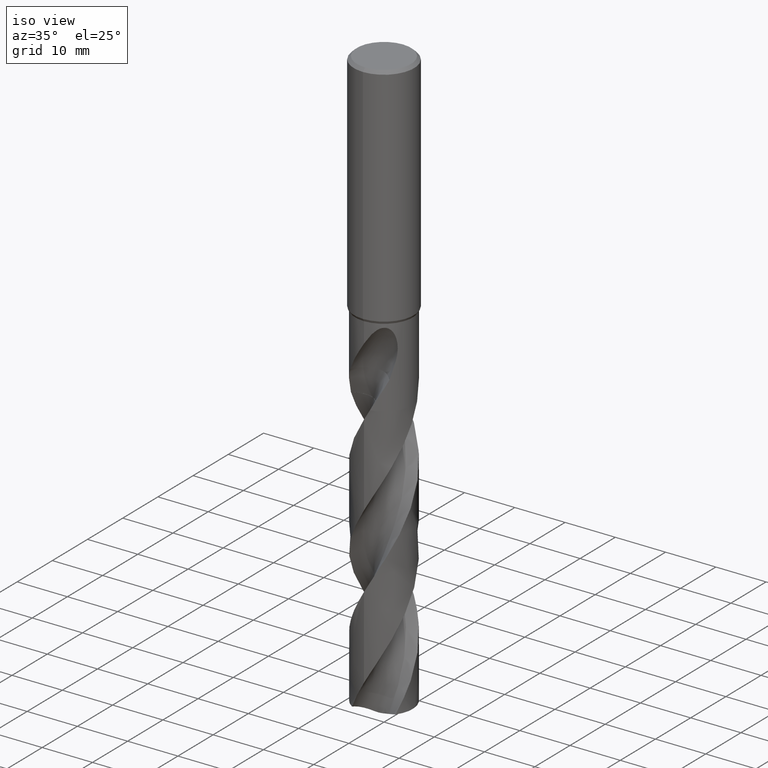
[diagram: clean part render]
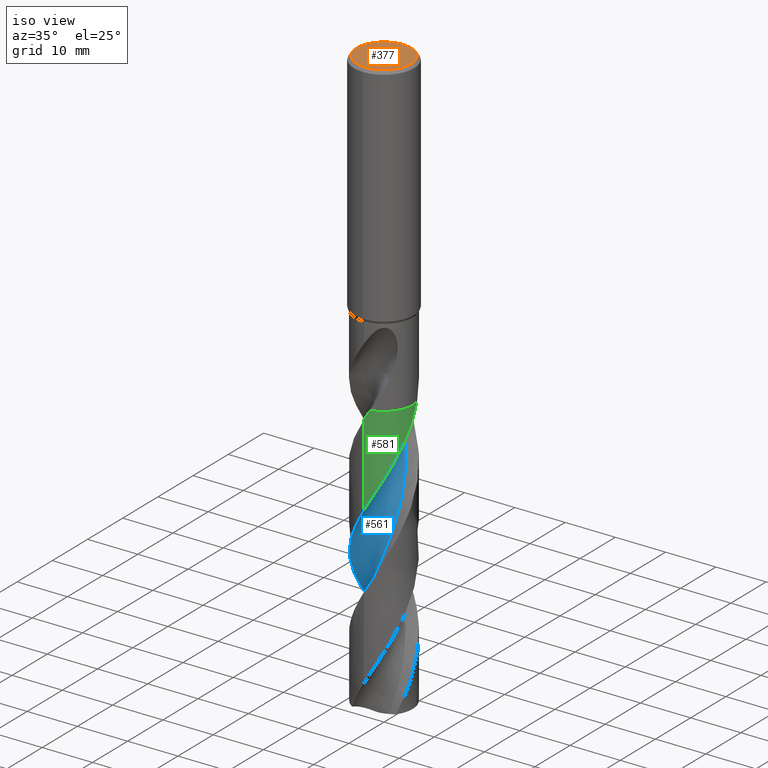
[diagram: same view with three faces highlighted in distinct colors, each labeled with its STEP entity id]
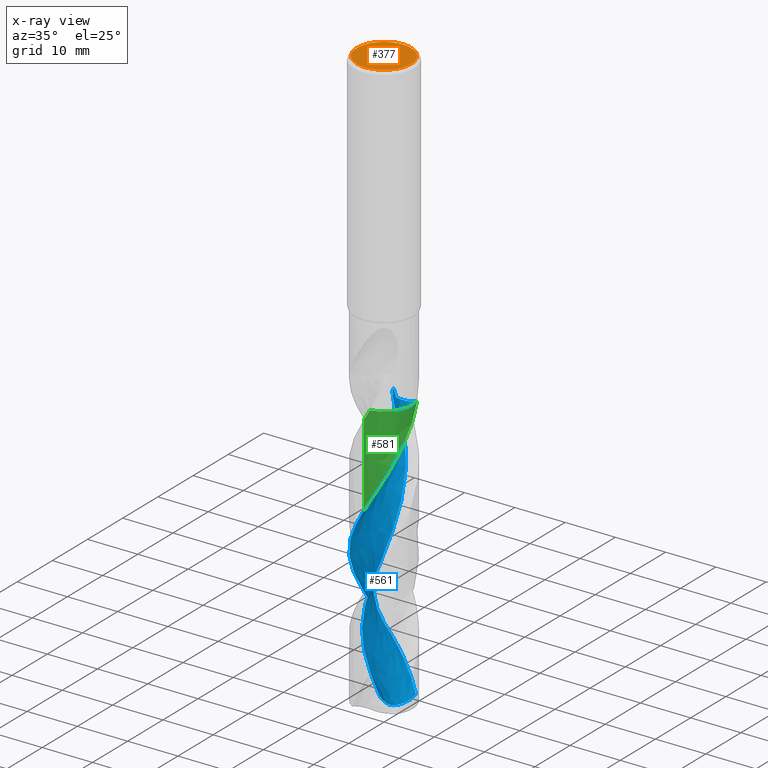
[diagram: x-ray of the same camera — body ghosted, the three highlighted faces saturated]
A machine part, iso view with three faces highlighted in distinct colors.
The next image is the same camera in x-ray (body ghosted, the three faces saturated) — at least one of them is partly hidden behind the body in this view.
Their STEP definitions:

[orange] entity #377 — the highlighted planar face has unit normal (-0, 0, 1).
#377=ADVANCED_FACE('',(#913),#914,.T.);
#437=EDGE_CURVE('',#473,#573,#979,.T.);
#473=VERTEX_POINT('',#1019);
#547=EDGE_CURVE('',#573,#473,#1099,.T.);
#573=VERTEX_POINT('',#1127);
#913=FACE_OUTER_BOUND('',#1887,.T.);
#914=PLANE('',#1888);
#979=CIRCLE('',#2510,5.4);
#1019=CARTESIAN_POINT('',(6.61287431064084E-016,-5.4,0.0));
#1099=CIRCLE('',#5036,5.4);
#1127=CARTESIAN_POINT('',(0.0,5.4,0.0));
#1887=EDGE_LOOP('',(#8953,#8954));
#1888=AXIS2_PLACEMENT_3D('',#8955,#8956,#8957);
#2510=AXIS2_PLACEMENT_3D('',#9014,#9015,#9016);
#5036=AXIS2_PLACEMENT_3D('',#9115,#9116,#9117);
#8953=ORIENTED_EDGE('',*,*,#547,.F.);
#8954=ORIENTED_EDGE('',*,*,#437,.F.);
#8955=CARTESIAN_POINT('',(0.0,2.7,0.0));
#8956=DIRECTION('',(-0.0,0.0,1.0));
#8957=DIRECTION('',(0.0,-1.0,0.0));
#9014=CARTESIAN_POINT('',(0.0,0.0,0.0));
#9015=DIRECTION('',(0.0,0.0,-1.0));
#9016=DIRECTION('',(0.0,1.0,0.0));
#9115=CARTESIAN_POINT('',(0.0,0.0,0.0));
#9116=DIRECTION('',(0.0,0.0,-1.0));
#9117=DIRECTION('',(0.0,1.0,0.0));

[blue] entity #561 — the highlighted face is a freeform B-spline surface patch.
#303=VERTEX_POINT('',#836);
#305=VERTEX_POINT('',#838);
#409=VERTEX_POINT('',#950);
#421=EDGE_CURVE('',#451,#305,#962,.T.);
#423=EDGE_CURVE('',#641,#303,#964,.T.);
#433=VERTEX_POINT('',#975);
#451=VERTEX_POINT('',#996);
#545=EDGE_CURVE('',#305,#693,#1097,.T.);
#561=ADVANCED_FACE('',(#1113),#1114,.F.);
#567=EDGE_CURVE('',#433,#641,#1121,.T.);
#603=EDGE_CURVE('',#303,#409,#1162,.T.);
#641=VERTEX_POINT('',#1206);
#693=VERTEX_POINT('',#1266);
#787=EDGE_CURVE('',#693,#433,#1366,.T.);
#793=EDGE_CURVE('',#409,#451,#1372,.T.);
#836=CARTESIAN_POINT('',(5.31225775869102E-013,5.69999020740226,-110.576126951692));
#838=CARTESIAN_POINT('',(-0.541493166476735,3.54193113846911,-61.305));
#950=CARTESIAN_POINT('',(6.87387509422925E-014,-5.69993344360781,-79.5686943897107));
#962=B_SPLINE_CURVE_WITH_KNOTS('',3,(#2338,#2339,#2340,#2341,#2342,#2343,#2344,#2345,#2346,#2347,#2348,#2349,#2350,#2351,#2352,#2353,#2354,#2355,#2356,#2357),.UNSPECIFIED.,.F.,.F.,(4,2,2,2,2,2,2,2,2,4),(-11.9705486914903,-11.1786743781553,-10.3866404242895,-8.90145990835102,-7.4164598185509,-5.93229006464055,-4.4491132924739,-2.96650471630376,-1.48369261024761,-0.0),.UNSPECIFIED.);
#964=B_SPLINE_CURVE_WITH_KNOTS('',3,(#2360,#2361,#2362,#2363,#2364,#2365,#2366,#2367,#2368,#2369,#2370,#2371,#2372,#2373,#2374,#2375,#2376,#2377,#2378,#2379,#2380,#2381,#2382,#2383,#2384,#2385,#2386,#2387,#2388,#2389,#2390,#2391,#2392,#2393,#2394,#2395,#2396,#2397,#2398,#2399,#2400,#2401,#2402,#2403,#2404,#2405,#2406,#2407,#2408,#2409,#2410,#2411,#2412,#2413,#2414,#2415,#2416,#2417,#2418,#2419,#2420,#2421,#2422,#2423,#2424,#2425,#2426,#2427),.UNSPECIFIED.,.F.,.F.,(4,2,2,2,2,2,2,2,2,2,2,2,2,2,2,2,2,2,2,2,2,2,2,2,2,2,2,2,2,2,2,2,2,4),(0.0,1.10970908936014,1.84814858889014,2.27456953198488,6.04114706367957,7.14930306029785,9.21865198784022,10.3257969644463,11.8480873652218,14.2792317308365,16.6987402200394,19.7161014895527,20.4874335656627,23.8727294849103,25.2068786415523,28.7888568530625,30.3231934723998,32.8490230998603,34.3452995188045,37.7461798856559,38.9835404645209,42.6173152200387,43.3776865555033,45.4639182897556,46.5827675529248,49.293235772257,51.8293155405073,52.6763022024344,55.4260315810747,59.5585017808519,61.6282352931625,62.6618996947757,63.177561829648,63.6936493495576),.UNSPECIFIED.);
#975=CARTESIAN_POINT('',(-8.30679653228368E-015,1.71522771440012,-117.37570816697));
#996=CARTESIAN_POINT('',(5.47945821869373,1.56984005344507,-61.305));
#1097=B_SPLINE_CURVE_WITH_KNOTS('',3,(#4978,#4979,#4980,#4981,#4982,#4983,#4984,#4985,#4986,#4987,#4988,#4989,#4990,#4991,#4992,#4993,#4994,#4995,#4996,#4997,#4998,#4999,#5000,#5001,#5002,#5003,#5004,#5005,#5006,#5007,#5008,#5009,#5010,#5011,#5012,#5013,#5014,#5015,#5016,#5017,#5018,#5019,#5020,#5021,#5022,#5023,#5024,#5025,#5026,#5027,#5028,#5029,#5030,#5031,#5032,#5033),.UNSPECIFIED.,.F.,.F.,(4,1,2,1,2,2,2,2,2,1,2,1,2,1,2,1,2,1,2,1,2,1,2,1,2,1,2,1,2,1,2,1,2,2,4),(0.0,1.25268519104765,2.5053703820953,3.75805557314295,5.0107407641906,7.51611114628589,10.0214815283812,12.5268519104765,15.0322222925718,17.5375926746671,20.0429630567624,22.5483334388577,25.053703820953,27.5590742030483,30.0644445851436,32.5698149672389,35.0751853493342,37.5805557314295,40.0859261135248,42.5912964956201,45.0966668777154,47.6020372598107,50.107407641906,52.6127780240013,55.1181484060966,57.6235187881918,60.1288891702871,62.6342595523824,65.1396299344777,67.645000316573,70.1503706986683,72.6557410807636,75.1611114628589,77.6664818449542,80.1718522270495),.UNSPECIFIED.);
#1113=FACE_OUTER_BOUND('',#5133,.T.);
#1114=B_SPLINE_SURFACE_WITH_KNOTS('',3,3,((#5134,#5135,#5136,#5137,#5138,#5139,#5140,#5141,#5142,#5143,#5144,#5145,#5146,#5147,#5148,#5149,#5150,#5151,#5152,#5153,#5154,#5155,#5156,#5157,#5158,#5159,#5160,#5161,#5162,#5163,#5164,#5165,#5166,#5167,#5168,#5169,#5170,#5171,#5172,#5173,#5174,#5175,#5176,#5177,#5178,#5179,#5180,#5181,#5182,#5183,#5184,#5185,#5186,#5187,#5188,#5189),(#5190,#5191,#5192,#5193,#5194,#5195,#5196,#5197,#5198,#5199,#5200,#5201,#5202,#5203,#5204,#5205,#5206,#5207,#5208,#5209,#5210,#5211,#5212,#5213,#5214,#5215,#5216,#5217,#5218,#5219,#5220,#5221,#5222,#5223,#5224,#5225,#5226,#5227,#5228,#5229,#5230,#5231,#5232,#5233,#5234,#5235,#5236,#5237,#5238,#5239,#5240,#5241,#5242,#5243,#5244,#5245),(#5246,#5247,#5248,#5249,#5250,#5251,#5252,#5253,#5254,#5255,#5256,#5257,#5258,#5259,#5260,#5261,#5262,#5263,#5264,#5265,#5266,#5267,#5268,#5269,#5270,#5271,#5272,#5273,#5274,#5275,#5276,#5277,#5278,#5279,#5280,#5281,#5282,#5283,#5284,#5285,#5286,#5287,#5288,#5289,#5290,#5291,#5292,#5293,#5294,#5295,#5296,#5297,#5298,#5299,#5300,#5301),(#5302,#5303,#5304,#5305,#5306,#5307,#5308,#5309,#5310,#5311,#5312,#5313,#5314,#5315,#5316,#5317,#5318,#5319,#5320,#5321,#5322,#5323,#5324,#5325,#5326,#5327,#5328,#5329,#5330,#5331,#5332,#5333,#5334,#5335,#5336,#5337,#5338,#5339,#5340,#5341,#5342,#5343,#5344,#5345,#5346,#5347,#5348,#5349,#5350,#5351,#5352,#5353,#5354,#5355,#5356,#5357),(#5358,#5359,#5360,#5361,#5362,#5363,#5364,#5365,#5366,#5367,#5368,#5369,#5370,#5371,#5372,#5373,#5374,#5375,#5376,#5377,#5378,#5379,#5380,#5381,#5382,#5383,#5384,#5385,#5386,#5387,#5388,#5389,#5390,#5391,#5392,#5393,#5394,#5395,#5396,#5397,#5398,#5399,#5400,#5401,#5402,#5403,#5404,#5405,#5406,#5407,#5408,#5409,#5410,#5411,#5412,#5413),(#5414,#5415,#5416,#5417,#5418,#5419,#5420,#5421,#5422,#5423,#5424,#5425,#5426,#5427,#5428,#5429,#5430,#5431,#5432,#5433,#5434,#5435,#5436,#5437,#5438,#5439,#5440,#5441,#5442,#5443,#5444,#5445,#5446,#5447,#5448,#5449,#5450,#5451,#5452,#5453,#5454,#5455,#5456,#5457,#5458,#5459,#5460,#5461,#5462,#5463,#5464,#5465,#5466,#5467,#5468,#5469),(#5470,#5471,#5472,#5473,#5474,#5475,#5476,#5477,#5478,#5479,#5480,#5481,#5482,#5483,#5484,#5485,#5486,#5487,#5488,#5489,#5490,#5491,#5492,#5493,#5494,#5495,#5496,#5497,#5498,#5499,#5500,#5501,#5502,#5503,#5504,#5505,#5506,#5507,#5508,#5509,#5510,#5511,#5512,#5513,#5514,#5515,#5516,#5517,#5518,#5519,#5520,#5521,#5522,#5523,#5524,#5525),(#5526,#5527,#5528,#5529,#5530,#5531,#5532,#5533,#5534,#5535,#5536,#5537,#5538,#5539,#5540,#5541,#5542,#5543,#5544,#5545,#5546,#5547,#5548,#5549,#5550,#5551,#5552,#5553,#5554,#5555,#5556,#5557,#5558,#5559,#5560,#5561,#5562,#5563,#5564,#5565,#5566,#5567,#5568,#5569,#5570,#5571,#5572,#5573,#5574,#5575,#5576,#5577,#5578,#5579,#5580,#5581),(#5582,#5583,#5584,#5585,#5586,#5587,#5588,#5589,#5590,#5591,#5592,#5593,#5594,#5595,#5596,#5597,#5598,#5599,#5600,#5601,#5602,#5603,#5604,#5605,#5606,#5607,#5608,#5609,#5610,#5611,#5612,#5613,#5614,#5615,#5616,#5617,#5618,#5619,#5620,#5621,#5622,#5623,#5624,#5625,#5626,#5627,#5628,#5629,#5630,#5631,#5632,#5633,#5634,#5635,#5636,#5637),(#5638,#5639,#5640,#5641,#5642,#5643,#5644,#5645,#5646,#5647,#5648,#5649,#5650,#5651,#5652,#5653,#5654,#5655,#5656,#5657,#5658,#5659,#5660,#5661,#5662,#5663,#5664,#5665,#5666,#5667,#5668,#5669,#5670,#5671,#5672,#5673,#5674,#5675,#5676,#5677,#5678,#5679,#5680,#5681,#5682,#5683,#5684,#5685,#5686,#5687,#5688,#5689,#5690,#5691,#5692,#5693),(#5694,#5695,#5696,#5697,#5698,#5699,#5700,#5701,#5702,#5703,#5704,#5705,#5706,#5707,#5708,#5709,#5710,#5711,#5712,#5713,#5714,#5715,#5716,#5717,#5718,#5719,#5720,#5721,#5722,#5723,#5724,#5725,#5726,#5727,#5728,#5729,#5730,#5731,#5732,#5733,#5734,#5735,#5736,#5737,#5738,#5739,#5740,#5741,#5742,#5743,#5744,#5745,#5746,#5747,#5748,#5749)),.UNSPECIFIED.,.F.,.F.,.F.,(4,1,1,1,1,1,1,1,4),(4,1,2,1,2,2,2,2,2,1,2,1,2,1,2,1,2,1,2,1,2,1,2,1,2,1,2,1,2,1,2,1,2,2,4),(-3.71342998238932E-017,0.392700895387305,0.78540179077461,1.17810268616191,1.57080358154922,1.96350447693652,2.35620537232383,2.74890626771113,3.14160716309844),(0.0,1.25268519104765,2.5053703820953,3.75805557314295,5.0107407641906,7.51611114628589,10.0214815283812,12.5268519104765,15.0322222925718,17.5375926746671,20.0429630567624,22.5483334388577,25.053703820953,27.5590742030483,30.0644445851436,32.5698149672389,35.0751853493342,37.5805557314295,40.0859261135248,42.5912964956201,45.0966668777154,47.6020372598107,50.107407641906,52.6127780240013,55.1181484060966,57.6235187881918,60.1288891702871,62.6342595523824,65.1396299344777,67.645000316573,70.1503706986683,72.6557410807636,75.1611114628589,77.6664818449542,80.1718522270495),.UNSPECIFIED.);
#1121=B_SPLINE_CURVE_WITH_KNOTS('',3,(#5773,#5774,#5775,#5776,#5777,#5778,#5779,#5780,#5781,#5782,#5783,#5784,#5785,#5786,#5787,#5788,#5789,#5790,#5791,#5792),.UNSPECIFIED.,.F.,.F.,(4,2,2,2,2,2,2,2,2,4),(0.0,1.79538223059602,2.6169113913568,3.95497352019238,5.14415228662445,6.49664279616013,7.96552243092837,9.62379448089827,11.4598399672948,13.409700815143),.UNSPECIFIED.);
#1162=B_SPLINE_CURVE_WITH_KNOTS('',3,(#6145,#6146,#6147,#6148,#6149,#6150,#6151,#6152,#6153,#6154,#6155,#6156,#6157,#6158,#6159,#6160,#6161,#6162,#6163,#6164,#6165,#6166,#6167,#6168,#6169,#6170,#6171,#6172,#6173,#6174,#6175,#6176,#6177,#6178,#6179,#6180,#6181,#6182,#6183,#6184,#6185,#6186,#6187,#6188,#6189,#6190,#6191,#6192,#6193,#6194,#6195,#6196,#6197,#6198,#6199,#6200,#6201,#6202,#6203,#6204,#6205,#6206,#6207,#6208,#6209,#6210,#6211,#6212),.UNSPECIFIED.,.F.,.F.,(4,2,2,2,2,2,2,2,2,2,2,2,2,2,2,2,2,2,2,2,2,2,2,2,2,2,2,2,2,2,2,2,2,4),(0.0,1.10970908936014,1.84814858889014,2.27456953198488,6.04114706367957,7.14930306029785,9.21865198784022,10.3257969644463,11.8480873652218,14.2792317308365,16.6987402200394,19.7161014895527,20.4874335656627,23.8727294849103,25.2068786415523,28.7888568530625,30.3231934723998,32.8490230998603,34.3452995188045,37.7461798856559,38.9835404645209,42.6173152200387,43.3776865555033,45.4639182897556,46.5827675529248,49.293235772257,51.8293155405073,52.6763022024344,55.4260315810747,59.5585017808519,61.6282352931625,62.6618996947757,63.177561829648,63.6936493495576),.UNSPECIFIED.);
#1206=CARTESIAN_POINT('',(2.9405006819118,4.88297611500161,-115.925369664683));
#1266=CARTESIAN_POINT('',(-2.63866897759648,2.4395400530556,-116.69203815204));
#1366=B_SPLINE_CURVE_WITH_KNOTS('',3,(#8718,#8719,#8720,#8721,#8722,#8723,#8724,#8725,#8726,#8727,#8728,#8729,#8730,#8731,#8732,#8733,#8734,#8735,#8736,#8737),.UNSPECIFIED.,.F.,.F.,(4,2,2,2,2,2,2,2,2,4),(0.0,1.79538223059602,2.6169113913568,3.95497352019238,5.14415228662445,6.49664279616013,7.96552243092837,9.62379448089827,11.4598399672948,13.409700815143),.UNSPECIFIED.);
#1372=B_SPLINE_CURVE_WITH_KNOTS('',3,(#8774,#8775,#8776,#8777,#8778,#8779,#8780,#8781,#8782,#8783,#8784,#8785,#8786,#8787,#8788,#8789,#8790,#8791,#8792,#8793,#8794,#8795,#8796,#8797,#8798,#8799,#8800,#8801,#8802,#8803,#8804,#8805,#8806,#8807,#8808,#8809,#8810,#8811,#8812,#8813,#8814,#8815,#8816,#8817,#8818,#8819,#8820,#8821,#8822,#8823,#8824,#8825,#8826,#8827,#8828,#8829,#8830,#8831,#8832,#8833,#8834,#8835,#8836,#8837,#8838,#8839,#8840,#8841),.UNSPECIFIED.,.F.,.F.,(4,2,2,2,2,2,2,2,2,2,2,2,2,2,2,2,2,2,2,2,2,2,2,2,2,2,2,2,2,2,2,2,2,4),(0.0,1.10970908936014,1.84814858889014,2.27456953198488,6.04114706367957,7.14930306029785,9.21865198784022,10.3257969644463,11.8480873652218,14.2792317308365,16.6987402200394,19.7161014895527,20.4874335656627,23.8727294849103,25.2068786415523,28.7888568530625,30.3231934723998,32.8490230998603,34.3452995188045,37.7461798856559,38.9835404645209,42.6173152200387,43.3776865555033,45.4639182897556,46.5827675529248,49.293235772257,51.8293155405073,52.6763022024344,55.4260315810747,59.5585017808519,61.6282352931625,62.6618996947757,63.177561829648,63.6936493495576),.UNSPECIFIED.);
#2338=CARTESIAN_POINT('',(6.78485168673347,5.55498557201948,-61.305));
#2339=CARTESIAN_POINT('',(6.85470302362606,5.30043555098166,-61.305));
#2340=CARTESIAN_POINT('',(6.8978294863711,5.03929611941267,-61.305));
#2341=CARTESIAN_POINT('',(6.92925859065382,4.51225817329413,-61.305));
#2342=CARTESIAN_POINT('',(6.91746489089626,4.24778978006872,-61.305));
#2343=CARTESIAN_POINT('',(6.80503906027663,3.49708203996453,-61.305));
#2344=CARTESIAN_POINT('',(6.63676525917335,3.02646945963621,-61.3049999999999));
#2345=CARTESIAN_POINT('',(6.1293690017484,2.17629394067333,-61.3049999999999));
#2346=CARTESIAN_POINT('',(5.79509922276989,1.80481614399386,-61.305));
#2347=CARTESIAN_POINT('',(5.00323783665382,1.2110720459979,-61.305));
#2348=CARTESIAN_POINT('',(4.553257496162,0.994378099480934,-61.305));
#2349=CARTESIAN_POINT('',(3.59589401529604,0.745759421271393,-61.305));
#2350=CARTESIAN_POINT('',(3.09769114214992,0.7160863379311,-61.305));
#2351=CARTESIAN_POINT('',(2.11812828415522,0.84936849394776,-61.305));
#2352=CARTESIAN_POINT('',(1.64614567201095,1.0109744066412,-61.305));
#2353=CARTESIAN_POINT('',(0.790611937378191,1.50606969468337,-61.305));
#2354=CARTESIAN_POINT('',(0.41528615543017,1.83483004948355,-61.305));
#2355=CARTESIAN_POINT('',(-0.18841807636128,2.61797643093895,-61.305));
#2356=CARTESIAN_POINT('',(-0.410913472996106,3.06491678339069,-61.305));
#2357=CARTESIAN_POINT('',(-0.54149316647673,3.54193113846911,-61.305));
#2360=CARTESIAN_POINT('',(2.94050068191177,4.88297611500164,-115.925369664683));
#2361=CARTESIAN_POINT('',(2.78254394516669,4.9780960859086,-115.60469831907));
#2362=CARTESIAN_POINT('',(2.61992165834367,5.06558222622792,-115.284683397062));
#2363=CARTESIAN_POINT('',(2.3422125584697,5.19799259539275,-114.750985248337));
#2364=CARTESIAN_POINT('',(2.22960986699374,5.24727547680664,-114.537896828651));
#2365=CARTESIAN_POINT('',(2.04967859214108,5.31919292043555,-114.20143516123));
#2366=CARTESIAN_POINT('',(1.9833715962872,5.34427078623918,-114.078200850451));
#2367=CARTESIAN_POINT('',(1.32648453251562,5.57879521163526,-112.867305393));
#2368=CARTESIAN_POINT('',(0.706008540923972,5.69067946703946,-111.801144802055));
#2369=CARTESIAN_POINT('',(-0.104593606349738,5.7020090593199,-110.394724954238));
#2370=CARTESIAN_POINT('',(-0.288423972382752,5.69565682708464,-110.073903904963));
#2371=CARTESIAN_POINT('',(-0.813910862927269,5.6520201836218,-109.157772460101));
#2372=CARTESIAN_POINT('',(-1.153581197817,5.59268162428982,-108.564981870801));
#2373=CARTESIAN_POINT('',(-1.66476156584056,5.4545812935147,-107.650800446139));
#2374=CARTESIAN_POINT('',(-1.84028209721142,5.39787792679916,-107.332643806129));
#2375=CARTESIAN_POINT('',(-2.24941799831913,5.2434740144766,-106.57532065172));
#2376=CARTESIAN_POINT('',(-2.47960687016896,5.13859952065761,-106.134931744765));
#2377=CARTESIAN_POINT('',(-3.05745812616745,4.82748340596875,-104.996690583517));
#2378=CARTESIAN_POINT('',(-3.3918696363515,4.59876775439598,-104.302750747433));
#2379=CARTESIAN_POINT('',(-4.00595434676225,4.07482294483966,-102.907905373956));
#2380=CARTESIAN_POINT('',(-4.28319698197771,3.78224066365835,-102.208363682623));
#2381=CARTESIAN_POINT('',(-4.83169930132882,3.06519027272901,-100.644858316431));
#2382=CARTESIAN_POINT('',(-5.08205958984477,2.62914591083974,-99.7881168778016));
#2383=CARTESIAN_POINT('',(-5.3207312998757,2.04836535820623,-98.6983559134055));
#2384=CARTESIAN_POINT('',(-5.3652246605529,1.92879056793012,-98.4760353487743));
#2385=CARTESIAN_POINT('',(-5.58300064958976,1.27765362064827,-97.2822951433538));
#2386=CARTESIAN_POINT('',(-5.68154653073035,0.723715931695211,-96.3258248567951));
#2387=CARTESIAN_POINT('',(-5.70395185858605,-0.0573372290444817,-94.9728273181759));
#2388=CARTESIAN_POINT('',(-5.69743289535723,-0.277829299766677,-94.5888405038561));
#2389=CARTESIAN_POINT('',(-5.6267719951409,-1.08520706256242,-93.1811347774322));
#2390=CARTESIAN_POINT('',(-5.48424020934092,-1.66173275855522,-92.1739328101046));
#2391=CARTESIAN_POINT('',(-5.15774853462765,-2.43948601509407,-90.7102904086871));
#2392=CARTESIAN_POINT('',(-5.04430058226862,-2.6662428445299,-90.2689403684202));
#2393=CARTESIAN_POINT('',(-4.70452300434764,-3.24519704365041,-89.1062803099821));
#2394=CARTESIAN_POINT('',(-4.45419868513009,-3.5810713619303,-88.3896060661398));
#2395=CARTESIAN_POINT('',(-4.0005761953947,-4.06768232328344,-87.2383863514968));
#2396=CARTESIAN_POINT('',(-3.82057369589607,-4.23713279335027,-86.8083050326384));
#2397=CARTESIAN_POINT('',(-3.19903394419275,-4.75068928755245,-85.408163741801));
#2398=CARTESIAN_POINT('',(-2.71720873797785,-5.04182966180459,-84.4516272177911));
#2399=CARTESIAN_POINT('',(-2.01229423033033,-5.33681026834259,-83.1269332656952));
#2400=CARTESIAN_POINT('',(-1.82056145577583,-5.40520733665235,-82.7722372879567));
#2401=CARTESIAN_POINT('',(-1.05280056681957,-5.63364492643998,-81.381747808253));
#2402=CARTESIAN_POINT('',(-0.457321557022978,-5.71282706043741,-80.3635650972238));
#2403=CARTESIAN_POINT('',(0.264252924927122,-5.69517357774353,-79.1098412100682));
#2404=CARTESIAN_POINT('',(0.388734284991058,-5.68803090462298,-78.8924927421686));
#2405=CARTESIAN_POINT('',(0.854166920090758,-5.64596444582907,-78.0804162272552));
#2406=CARTESIAN_POINT('',(1.19255671929343,-5.58439179345732,-77.4889934557145));
#2407=CARTESIAN_POINT('',(1.70199185509429,-5.44301974689716,-76.576379241174));
#2408=CARTESIAN_POINT('',(1.87715173247892,-5.38510911448396,-76.2582803139181));
#2409=CARTESIAN_POINT('',(2.46541496619606,-5.15848672334971,-75.1672048905661));
#2410=CARTESIAN_POINT('',(2.8617175574051,-4.9496989949829,-74.3909915116927));
#2411=CARTESIAN_POINT('',(3.57463101267596,-4.45937719023644,-72.8962125533752));
#2412=CARTESIAN_POINT('',(3.89128054659403,-4.18572155744463,-72.1799099724887));
#2413=CARTESIAN_POINT('',(4.26931720748424,-3.77906347994962,-71.2145608041526));
#2414=CARTESIAN_POINT('',(4.36015919766322,-3.67389624427367,-70.9723049487011));
#2415=CARTESIAN_POINT('',(4.73048149957977,-3.2119271550077,-69.9441381471892));
#2416=CARTESIAN_POINT('',(4.97097376348157,-2.82574118518145,-69.1664765735777));
#2417=CARTESIAN_POINT('',(5.45255099820871,-1.79576629490999,-67.2026199469021));
#2418=CARTESIAN_POINT('',(5.62802441936606,-1.13094491117218,-66.0246775597658));
#2419=CARTESIAN_POINT('',(5.70904344882562,-0.111006678407615,-64.254020224426));
#2420=CARTESIAN_POINT('',(5.70544444913881,0.231132031156578,-63.6646691571269));
#2421=CARTESIAN_POINT('',(5.65415927495312,0.740579714427816,-62.7785761725679));
#2422=CARTESIAN_POINT('',(5.62948703696921,0.909247427800525,-62.4839427015227));
#2423=CARTESIAN_POINT('',(5.58130874572696,1.15977498909959,-62.041291651299));
#2424=CARTESIAN_POINT('',(5.56343426844816,1.24267536304169,-61.893973996514));
#2425=CARTESIAN_POINT('',(5.52404755061531,1.40746127965029,-61.5989297400685));
#2426=CARTESIAN_POINT('',(5.50266055645775,1.48886257984399,-61.4517863647488));
#2427=CARTESIAN_POINT('',(5.47941557693283,1.56998886747058,-61.3047302396814));
#4978=CARTESIAN_POINT('',(-2.68700576843817,2.82299423156183,-55.6234));
#4979=CARTESIAN_POINT('',(-2.42516415111637,2.80834777674738,-55.9479056740217));
#4980=CARTESIAN_POINT('',(-2.00813841790245,2.83265390655202,-56.5948436408099));
#4981=CARTESIAN_POINT('',(-1.80379077447631,2.95431075034267,-57.2412863642587));
#4982=CARTESIAN_POINT('',(-1.68900855381102,3.13681010478619,-57.8939549529838));
#4983=CARTESIAN_POINT('',(-1.53206084604173,3.29086553146598,-58.5475350720297));
#4984=CARTESIAN_POINT('',(-1.31112214408131,3.37981534034376,-59.1984126676006));
#4985=CARTESIAN_POINT('',(-0.948333367939867,3.4658392932935,-60.1701639972952));
#4986=CARTESIAN_POINT('',(-0.713020966615423,3.51269220177432,-60.8185131450132));
#4987=CARTESIAN_POINT('',(-0.253844787961842,3.59136801610822,-62.1198441572197));
#4988=CARTESIAN_POINT('',(-0.015570802198624,3.59941975308588,-62.7701514884649));
#4989=CARTESIAN_POINT('',(0.456586379783736,3.56951748537086,-64.0691495893734));
#4990=CARTESIAN_POINT('',(0.691698330181031,3.52873652717232,-64.7188495045981));
#4991=CARTESIAN_POINT('',(1.14830665243206,3.40965456219255,-66.0187709165532));
#4992=CARTESIAN_POINT('',(1.37078030092639,3.32489958865528,-66.668553945778));
#4993=CARTESIAN_POINT('',(1.7952549606948,3.12372920889599,-67.9680983815031));
#4994=CARTESIAN_POINT('',(2.19831217774659,2.86595321549347,-69.2680396898932));
#4995=CARTESIAN_POINT('',(2.54284664042583,2.53712811167106,-70.5671816609803));
#4996=CARTESIAN_POINT('',(2.85876310217771,2.19144408512986,-71.8669101354121));
#4997=CARTESIAN_POINT('',(3.13277513009525,1.80019667490406,-73.1670821125905));
#4998=CARTESIAN_POINT('',(3.32412175625395,1.36380569038984,-74.4662918383676));
#4999=CARTESIAN_POINT('',(3.4820563696451,0.922569154304257,-75.7659061053139));
#5000=CARTESIAN_POINT('',(3.58404428981025,0.455776103402216,-77.0659780725717));
#5001=CARTESIAN_POINT('',(3.59280530486397,-0.0205594891792539,-78.3651721709509));
#5002=CARTESIAN_POINT('',(3.56891471182553,-0.488527338424058,-79.6648296994768));
#5003=CARTESIAN_POINT('',(3.48345692171456,-0.95861050945885,-80.9649345295735));
#5004=CARTESIAN_POINT('',(3.30819047898418,-1.40164184600001,-82.2641314599107));
#5005=CARTESIAN_POINT('',(3.10602830557889,-1.82437687358408,-83.5637757688145));
#5006=CARTESIAN_POINT('',(2.84624823552385,-2.22536730244093,-84.8638715161582));
#5007=CARTESIAN_POINT('',(2.51399292935704,-2.56682871287016,-86.1630681577825));
#5008=CARTESIAN_POINT('',(2.16471161433058,-2.87920207754666,-87.4627158736996));
#5009=CARTESIAN_POINT('',(1.77061606155988,-3.14933118334655,-88.7628137390137));
#5010=CARTESIAN_POINT('',(1.33254024520277,-3.33662685931551,-90.0620104133925));
#5011=CARTESIAN_POINT('',(0.889947561808105,-3.4905262825664,-91.3616575773373));
#5012=CARTESIAN_POINT('',(0.422247851467072,-3.58818685693858,-92.6617550422272));
#5013=CARTESIAN_POINT('',(-0.0541688456553339,-3.59246419758633,-93.9609510860263));
#5014=CARTESIAN_POINT('',(-0.521901965849174,-3.56417801305436,-95.2605972598391));
#5015=CARTESIAN_POINT('',(-0.991162537164969,-3.47432901235322,-96.5606949333673));
#5016=CARTESIAN_POINT('',(-1.43253251399451,-3.29493772904548,-97.8598942778403));
#5017=CARTESIAN_POINT('',(-1.85335724322629,-3.08882725487023,-99.1595453268341));
#5018=CARTESIAN_POINT('',(-2.25189896452176,-2.82529045942688,-100.459641661149));
#5019=CARTESIAN_POINT('',(-2.59023525967014,-2.48985775677012,-101.758827459639));
#5020=CARTESIAN_POINT('',(-2.8993366296421,-2.13770060164844,-103.058460332832));
#5021=CARTESIAN_POINT('',(-3.16578068939406,-1.74113108284587,-104.358564049812));
#5022=CARTESIAN_POINT('',(-3.34891906786949,-1.30125149797069,-105.657797487152));
#5023=CARTESIAN_POINT('',(-3.49853462534395,-0.857093372040664,-106.957487791565));
#5024=CARTESIAN_POINT('',(-3.59176205452247,-0.388446900214281,-108.257557743795));
#5025=CARTESIAN_POINT('',(-3.59205625304591,0.0877206475997925,-109.556652379621));
#5026=CARTESIAN_POINT('',(-3.5602604723459,0.554810323842827,-110.856204805384));
#5027=CARTESIAN_POINT('',(-3.46605994959983,1.02320610103437,-112.156415766419));
#5028=CARTESIAN_POINT('',(-3.2800291052024,1.46313641375125,-113.455851468388));
#5029=CARTESIAN_POINT('',(-3.06625645958788,1.88193750638866,-114.755631449003));
#5030=CARTESIAN_POINT('',(-2.93483128285328,2.08004030323238,-115.405378926991));
#5031=CARTESIAN_POINT('',(-2.64501430861453,2.44881954259515,-116.704176226033));
#5032=CARTESIAN_POINT('',(-2.47056563171009,2.61525397126311,-117.353831502309));
#5033=CARTESIAN_POINT('',(-2.2774090377329,2.76054102060545,-118.00312590628));
#5133=EDGE_LOOP('',(#9119,#9120,#9121,#9122,#9123,#9124,#9125));
#5134=CARTESIAN_POINT('',(2.68700576843817,8.19700576843817,-55.6234));
#5135=CARTESIAN_POINT('',(2.94939274402941,8.18181395535428,-55.9478924526492));
#5136=CARTESIAN_POINT('',(3.48010520578114,8.09597684859221,-56.6007061720946));
#5137=CARTESIAN_POINT('',(4.00639155921818,7.86379708250138,-57.2551805150338));
#5138=CARTESIAN_POINT('',(4.51156484335841,7.54296934809397,-57.9022930682003));
#5139=CARTESIAN_POINT('',(4.99817749188116,7.20722835301629,-58.547981951302));
#5140=CARTESIAN_POINT('',(5.45412150348996,6.85054480609347,-59.1963938090988));
#5141=CARTESIAN_POINT('',(6.11723630863298,6.3040755096544,-60.1742752765364));
#5142=CARTESIAN_POINT('',(6.52282821358267,5.89252256206719,-60.825838045284));
#5143=CARTESIAN_POINT('',(7.23545961784403,4.98111687612293,-62.1236708604212));
#5144=CARTESIAN_POINT('',(7.5482855181035,4.49279344315531,-62.7729292975327));
#5145=CARTESIAN_POINT('',(8.07228586531384,3.46420328080926,-64.0732835648797));
#5146=CARTESIAN_POINT('',(8.28428185487006,2.92512327203751,-64.72325182588));
#5147=CARTESIAN_POINT('',(8.59567042171977,1.81328652900812,-66.0225974036428));
#5148=CARTESIAN_POINT('',(8.6973707226542,1.24250968353748,-66.6724646422124));
#5149=CARTESIAN_POINT('',(8.7817216732301,0.0898381537466357,-67.9722247720911));
#5150=CARTESIAN_POINT('',(8.75707260286573,-1.06816704800894,-69.2715429483725));
#5151=CARTESIAN_POINT('',(8.50744644150039,-2.20006593445472,-70.5717553572589));
#5152=CARTESIAN_POINT('',(8.1406997426219,-3.29659230605383,-71.871312036656));
#5153=CARTESIAN_POINT('',(7.67139257666343,-4.35588791583757,-73.1703727680635));
#5154=CARTESIAN_POINT('',(7.00518406989894,-5.30453449790551,-74.4705083785597));
#5155=CARTESIAN_POINT('',(6.24489273526933,-6.1755752306806,-75.7701920818553));
#5156=CARTESIAN_POINT('',(5.40421838025129,-6.97275934289671,-77.0693644803926));
#5157=CARTESIAN_POINT('',(4.42427666478075,-7.59193420382953,-78.3695178451453));
#5158=CARTESIAN_POINT('',(3.38731546744745,-8.10325123611599,-79.6691533680066));
#5159=CARTESIAN_POINT('',(2.30458815549295,-8.51549069490457,-80.9682890703924));
#5160=CARTESIAN_POINT('',(1.1618229871271,-8.7098674526253,-82.2684391918438));
#5161=CARTESIAN_POINT('',(0.00794188961255415,-8.78274262116716,-83.5680894394632));
#5162=CARTESIAN_POINT('',(-1.15004613051524,-8.74654973789547,-84.8672352771447));
#5163=CARTESIAN_POINT('',(-2.27959725245617,-8.48616520443664,-86.167385744233));
#5164=CARTESIAN_POINT('',(-3.37265075076628,-8.10936534680711,-87.4670322117743));
#5165=CARTESIAN_POINT('',(-4.42752349241555,-7.63031845056912,-88.7661757132898));
#5166=CARTESIAN_POINT('',(-5.36987296128641,-6.95528841923723,-90.0663261301983));
#5167=CARTESIAN_POINT('',(-6.23373254582394,-6.18685238358445,-91.3659731542216));
#5168=CARTESIAN_POINT('',(-7.02300220417307,-5.3387385669169,-92.6651169951317));
#5169=CARTESIAN_POINT('',(-7.63299276954155,-4.35304228886965,-93.9652681468139));
#5170=CARTESIAN_POINT('',(-8.13459290229148,-3.31134163827433,-95.2649164933869));
#5171=CARTESIAN_POINT('',(-8.53668288574832,-2.22480369107031,-96.5640605021851));
#5172=CARTESIAN_POINT('',(-8.72035145783651,-1.08027082435326,-97.864207859473));
#5173=CARTESIAN_POINT('',(-8.78242541976293,0.0742420110448622,-99.1638499581144));
#5174=CARTESIAN_POINT('',(-8.73540379594711,1.23184329387015,-100.462993969656));
#5175=CARTESIAN_POINT('',(-8.464461361034,2.35890851757842,-101.763156881101));
#5176=CARTESIAN_POINT('',(-8.07743805054159,3.44837767425831,-103.062822313297));
#5177=CARTESIAN_POINT('',(-7.5885283691473,4.49869702505308,-104.361963706562));
#5178=CARTESIAN_POINT('',(-6.90474915340785,5.43469767791584,-105.662072158203));
#5179=CARTESIAN_POINT('',(-6.1283452974235,6.29140115752253,-106.961662720132));
#5180=CARTESIAN_POINT('',(-5.27290121932488,7.07281017667433,-108.260821674347));
#5181=CARTESIAN_POINT('',(-4.28132079405214,7.6734023630719,-109.561094817478));
#5182=CARTESIAN_POINT('',(-3.23464738242631,8.16477516676635,-110.860888280171));
#5183=CARTESIAN_POINT('',(-2.14444012729789,8.5562828806121,-112.159977754362));
#5184=CARTESIAN_POINT('',(-0.998913790928107,8.73025737769147,-113.459909301864));
#5185=CARTESIAN_POINT('',(0.155414985602779,8.78377121852596,-114.759400170204));
#5186=CARTESIAN_POINT('',(0.734637559325416,8.75467838566467,-115.409276867495));
#5187=CARTESIAN_POINT('',(1.8765153226808,8.57837894423225,-116.708691628348));
#5188=CARTESIAN_POINT('',(2.43687694668647,8.43853281270189,-117.357553287389));
#5189=CARTESIAN_POINT('',(2.97911471408975,8.24952474234878,-118.007094019319));
#5190=CARTESIAN_POINT('',(3.03872059025887,7.84526087705853,-55.6234));
#5191=CARTESIAN_POINT('',(3.30107186931131,7.83003337229053,-55.9478914829248));
#5192=CARTESIAN_POINT('',(3.82457524464132,7.73675577385931,-56.6011361274008));
#5193=CARTESIAN_POINT('',(4.32770039804739,7.48350506700461,-57.2561995088776));
#5194=CARTESIAN_POINT('',(4.79993074322601,7.13712830078043,-57.9029045811747));
#5195=CARTESIAN_POINT('',(5.25448596235213,6.77981242876082,-58.5480147266179));
#5196=CARTESIAN_POINT('',(5.68126233687844,6.4077488930703,-59.1962457455751));
#5197=CARTESIAN_POINT('',(6.30297952663535,5.84162497459529,-60.1745767986122));
#5198=CARTESIAN_POINT('',(6.67856774741967,5.41892841672081,-60.826375253026));
#5199=CARTESIAN_POINT('',(7.32639781160188,4.49093689449839,-62.1239515074829));
#5200=CARTESIAN_POINT('',(7.60673573546649,3.99773541301946,-62.7731330297574));
#5201=CARTESIAN_POINT('',(8.06537155966924,2.96575492905849,-64.0735867405834));
#5202=CARTESIAN_POINT('',(8.24475383005103,2.42818927704904,-64.7235747024954));
#5203=CARTESIAN_POINT('',(8.49116694820368,1.32585996948459,-66.0228780250326));
#5204=CARTESIAN_POINT('',(8.56105734440308,0.762989130681791,-66.6727514573895));
#5205=CARTESIAN_POINT('',(8.58313337464175,-0.367418565440448,-67.9725273941402));
#5206=CARTESIAN_POINT('',(8.49956539400919,-1.49742782492863,-69.2717998831788));
#5207=CARTESIAN_POINT('',(8.19737955580336,-2.5904364741199,-70.572090782571));
#5208=CARTESIAN_POINT('',(7.78149204912621,-3.64228035259432,-71.8716348786105));
#5209=CARTESIAN_POINT('',(7.26846317704636,-4.65292378851913,-73.1706141081347));
#5210=CARTESIAN_POINT('',(6.568729842761,-5.54544176033205,-74.4708176011249));
#5211=CARTESIAN_POINT('',(5.78031035405329,-6.35638325083702,-75.7705064309735));
#5212=CARTESIAN_POINT('',(4.91801451960843,-7.09186912107915,-77.0696128255397));
#5213=CARTESIAN_POINT('',(3.92872673544731,-7.64633275777348,-78.3698365640548));
#5214=CARTESIAN_POINT('',(2.88893118535755,-8.09134405908883,-79.6694704557402));
#5215=CARTESIAN_POINT('',(1.80999254813846,-8.43831231758389,-80.9685350838014));
#5216=CARTESIAN_POINT('',(0.683504603371349,-8.56936675688185,-82.2687551430234));
#5217=CARTESIAN_POINT('',(-0.447475424098194,-8.57995279055289,-83.5684057790181));
#5218=CARTESIAN_POINT('',(-1.57684725070417,-8.48497333107157,-84.8674819894921));
#5219=CARTESIAN_POINT('',(-2.66700516472696,-8.17240734634747,-86.1677023876108));
#5220=CARTESIAN_POINT('',(-3.71495008344193,-7.74692939117441,-87.4673487774771));
#5221=CARTESIAN_POINT('',(-4.72078734400844,-7.22463671439595,-88.7664222784453));
#5222=CARTESIAN_POINT('',(-5.60669597724779,-6.51660428439991,-90.0666426382683));
#5223=CARTESIAN_POINT('',(-6.41018738908365,-5.72059886953855,-91.3662896622916));
#5224=CARTESIAN_POINT('',(-7.13755513854799,-4.85144093136653,-92.6653635560488));
#5225=CARTESIAN_POINT('',(-7.6827513329775,-3.85700500586786,-93.9655847605787));
#5226=CARTESIAN_POINT('',(-8.11802324783019,-2.8130906164324,-95.2652332625017));
#5227=CARTESIAN_POINT('',(-8.45488005086539,-1.73095178256168,-96.5643073027727));
#5228=CARTESIAN_POINT('',(-8.57538062905865,-0.603288256788694,-97.8645242762551));
#5229=CARTESIAN_POINT('',(-8.57538251903314,0.527741615659043,-99.164165598146));
#5230=CARTESIAN_POINT('',(-8.46984557299687,1.65617823091101,-100.463239881337));
#5231=CARTESIAN_POINT('',(-8.14709231414931,2.74336380361525,-101.763474350528));
#5232=CARTESIAN_POINT('',(-7.71181380790687,3.78726939911206,-103.063142268325));
#5233=CARTESIAN_POINT('',(-7.18011826142719,4.78814897272894,-104.362213015225));
#5234=CARTESIAN_POINT('',(-6.46387025580336,5.66740827383183,-105.662385654304));
#5235=CARTESIAN_POINT('',(-5.66046787394975,6.46350249680965,-106.961968914778));
#5236=CARTESIAN_POINT('',(-4.78455611019884,7.18282000870963,-108.261061054582));
#5237=CARTESIAN_POINT('',(-3.78483487366456,7.71849342182725,-109.561420608179));
#5238=CARTESIAN_POINT('',(-2.73657498804082,8.14344223429148,-110.861231780783));
#5239=CARTESIAN_POINT('',(-1.65140286425217,8.46976147059014,-112.160239000213));
#5240=CARTESIAN_POINT('',(-0.523286089851394,8.58093758054457,-113.460206864098));
#5241=CARTESIAN_POINT('',(0.607131947826387,8.57289289800053,-114.759676604825));
#5242=CARTESIAN_POINT('',(1.17148326859292,8.51449231702554,-115.409562702229));
#5243=CARTESIAN_POINT('',(2.27768311574351,8.28242685233373,-116.709022825309));
#5244=CARTESIAN_POINT('',(2.81799758888983,8.11732357887171,-117.357826209163));
#5245=CARTESIAN_POINT('',(3.33835469363146,7.90546902461289,-118.00738503938));
#5246=CARTESIAN_POINT('',(3.60212603409027,7.00205515268653,-55.6234));
#5247=CARTESIAN_POINT('',(3.86439174568658,6.98677047112901,-55.947889888119));
#5248=CARTESIAN_POINT('',(4.37052114939353,6.8814818635195,-56.6018432675744));
#5249=CARTESIAN_POINT('',(4.8189549531333,6.59530786599361,-57.2578754195002));
#5250=CARTESIAN_POINT('',(5.21515304718983,6.21094437762603,-57.9039103277005));
#5251=CARTESIAN_POINT('',(5.59702725925152,5.82323621230348,-58.5480686270087));
#5252=CARTESIAN_POINT('',(5.95936462536911,5.4320179789681,-59.196002232567));
#5253=CARTESIAN_POINT('',(6.49048808114675,4.84305543555294,-60.1750726977111));
#5254=CARTESIAN_POINT('',(6.80165018143472,4.41000748109056,-60.8272587821639));
#5255=CARTESIAN_POINT('',(7.3133093048751,3.47462059028057,-62.1244130853675));
#5256=CARTESIAN_POINT('',(7.52674508058804,2.98458434993668,-62.7734680734713));
#5257=CARTESIAN_POINT('',(7.85333123782064,1.97181766209976,-64.0740853967038));
#5258=CARTESIAN_POINT('',(7.96810205046455,1.45024935803943,-64.7241056863581));
#5259=CARTESIAN_POINT('',(8.08837223759383,0.392769320244927,-66.0233396004874));
#5260=CARTESIAN_POINT('',(8.09780027261628,-0.141643219051358,-66.6732231661369));
#5261=CARTESIAN_POINT('',(8.00420610114398,-1.20276817010859,-67.973025119273));
#5262=CARTESIAN_POINT('',(7.81395815502537,-2.25336741226102,-69.2722224437971));
#5263=CARTESIAN_POINT('',(7.42214026125326,-3.2477109763213,-70.5726424676222));
#5264=CARTESIAN_POINT('',(6.92576043844191,-4.19066711509112,-71.8721658306252));
#5265=CARTESIAN_POINT('',(6.34465376698244,-5.08664019482783,-73.1710110173116));
#5266=CARTESIAN_POINT('',(5.60020517930472,-5.85359298972992,-74.471326225721));
#5267=CARTESIAN_POINT('',(4.77944047265771,-6.53317575623591,-75.7710233804116));
#5268=CARTESIAN_POINT('',(3.89844596044137,-7.13669304473591,-77.0700213092833));
#5269=CARTESIAN_POINT('',(2.91620321305735,-7.55804492067474,-78.3703607347083));
#5270=CARTESIAN_POINT('',(1.89710752624616,-7.86934552275826,-79.6699919816855));
#5271=CARTESIAN_POINT('',(0.851700622747607,-8.08730549627092,-80.9689397198308));
#5272=CARTESIAN_POINT('',(-0.21705877007287,-8.09821486303642,-82.2692747148192));
#5273=CARTESIAN_POINT('',(-1.27747621522821,-7.99335568682354,-83.5689261212713));
#5274=CARTESIAN_POINT('',(-2.3262503935725,-7.79220755881383,-84.8678877086437));
#5275=CARTESIAN_POINT('',(-3.31688786009253,-7.39096572804929,-86.1682231838347));
#5276=CARTESIAN_POINT('',(-4.25527711072654,-6.88609025315674,-87.4678694057123));
#5277=CARTESIAN_POINT('',(-5.14586677532822,-6.29682375600762,-88.7668277811675));
#5278=CARTESIAN_POINT('',(-5.90579369154219,-5.54524488328747,-90.0671632465404));
#5279=CARTESIAN_POINT('',(-6.57761081593721,-4.71811853754874,-91.3668101611423));
#5280=CARTESIAN_POINT('',(-7.17283235081989,-3.8314973604866,-92.6657690981341));
#5281=CARTESIAN_POINT('',(-7.58499165214286,-2.84535214942296,-93.9661054846836));
#5282=CARTESIAN_POINT('',(-7.88675472635089,-1.82338750555812,-95.2657542487069));
#5283=CARTESIAN_POINT('',(-8.09492202763376,-0.775985932098091,-96.5647133091937));
#5284=CARTESIAN_POINT('',(-8.0958214945799,0.292826452606626,-97.86504447805));
#5285=CARTESIAN_POINT('',(-7.98104373053798,1.3522164916737,-99.1646849256414));
#5286=CARTESIAN_POINT('',(-7.77009846798781,2.39906664558022,-100.463644145739));
#5287=CARTESIAN_POINT('',(-7.35960410455133,3.38590642199898,-101.763996645417));
#5288=CARTESIAN_POINT('',(-6.84595440328718,4.31951481203743,-103.063668330823));
#5289=CARTESIAN_POINT('',(-6.24836560729912,5.20452121370806,-104.362623108638));
#5290=CARTESIAN_POINT('',(-5.48975763831281,5.95741010123291,-105.662901291886));
#5291=CARTESIAN_POINT('',(-4.65647161550164,6.62157497931094,-106.962472468394));
#5292=CARTESIAN_POINT('',(-3.76432468333554,7.20859640071621,-108.261454757969));
#5293=CARTESIAN_POINT('',(-2.774141004351,7.61122226362126,-109.561956465994));
#5294=CARTESIAN_POINT('',(-1.74912324403495,7.90272022116223,-110.861796691076));
#5295=CARTESIAN_POINT('',(-0.699942348178399,8.10069224238372,-112.160668631713));
#5296=CARTESIAN_POINT('',(0.36839001610686,8.09322108476383,-113.460696362239));
#5297=CARTESIAN_POINT('',(1.42651707691368,7.9715938246888,-114.760131146141));
#5298=CARTESIAN_POINT('',(1.94947752298058,7.86050374924583,-115.410032897886));
#5299=CARTESIAN_POINT('',(2.9621604936996,7.53111757063927,-116.709567447523));
#5300=CARTESIAN_POINT('',(3.45234524411783,7.32348265440103,-117.358275167755));
#5301=CARTESIAN_POINT('',(3.9198650247835,7.0746458825284,-118.00786367339));
#5302=CARTESIAN_POINT('',(3.89892424730393,5.51000416701436,-55.6233999999994));
#5303=CARTESIAN_POINT('',(4.1610385420767,5.49468936703495,-55.9478888943478));
#5304=CARTESIAN_POINT('',(4.63619380936532,5.38272799133286,-56.602284703064));
#5305=CARTESIAN_POINT('',(4.98993083894137,5.08231856964613,-57.2589216227885));
#5306=CARTESIAN_POINT('',(5.25894595715308,4.68895544426702,-57.9045381700231));
#5307=CARTESIAN_POINT('',(5.52264174611673,4.30084906532664,-58.5481022756818));
#5308=CARTESIAN_POINT('',(5.7846753278259,3.92007484603659,-59.1958502186655));
#5309=CARTESIAN_POINT('',(6.177131369641,3.35146500207619,-60.1753822646052));
#5310=CARTESIAN_POINT('',(6.39306115202085,2.94105415950988,-60.8278103290291));
#5311=CARTESIAN_POINT('',(6.71175087204238,2.0735873801366,-62.1247012321645));
#5312=CARTESIAN_POINT('',(6.83428180841437,1.62634333840066,-62.7736772400074));
#5313=CARTESIAN_POINT('',(6.98888559786715,0.716009006680146,-64.0743966738618));
#5314=CARTESIAN_POINT('',(7.0232925034492,0.253702277919836,-64.7244371723804));
#5315=CARTESIAN_POINT('',(6.99448294631567,-0.669207001260208,-66.0236277274407));
#5316=CARTESIAN_POINT('',(6.93645062236372,-1.12946967646912,-66.6735176258376));
#5317=CARTESIAN_POINT('',(6.72231722898199,-2.02817265473928,-67.9733358363104));
#5318=CARTESIAN_POINT('',(6.42980341799823,-2.90747498957971,-69.2724862257108));
#5319=CARTESIAN_POINT('',(5.97040034117049,-3.71362188824266,-70.5729868629283));
#5320=CARTESIAN_POINT('',(5.42497076622232,-4.45946011813,-71.872497280042));
#5321=CARTESIAN_POINT('',(4.81533964851895,-5.15742740838738,-73.1712587857953));
#5322=CARTESIAN_POINT('',(4.0809995874517,-5.72468638194764,-74.4716437506043));
#5323=CARTESIAN_POINT('',(3.2908133219691,-6.20364689870317,-75.7713460782091));
#5324=CARTESIAN_POINT('',(2.4596606021832,-6.61353045086461,-77.0702763121706));
#5325=CARTESIAN_POINT('',(1.56359484479475,-6.8544425304476,-78.3706879569581));
#5326=CARTESIAN_POINT('',(0.649944672686218,-6.99231181922429,-79.670317543776));
#5327=CARTESIAN_POINT('',(-0.274931870746903,-7.05072388116728,-80.9691923066337));
#5328=CARTESIAN_POINT('',(-1.19471391352416,-6.92825929649856,-82.2695990870471));
#5329=CARTESIAN_POINT('',(-2.09106471514309,-6.70390744724475,-83.5692509235888));
#5330=CARTESIAN_POINT('',(-2.96718950156988,-6.40188380463544,-84.8681409865994));
#5331=CARTESIAN_POINT('',(-3.7689937798551,-5.93487314224793,-86.1685483112602));
#5332=CARTESIAN_POINT('',(-4.50996782553292,-5.38284855781363,-87.4681943957084));
#5333=CARTESIAN_POINT('',(-5.20238549176385,-4.76691907565163,-88.7670809613555));
#5334=CARTESIAN_POINT('',(-5.76271224011177,-4.02730772225762,-90.0674881728239));
#5335=CARTESIAN_POINT('',(-6.23417254979902,-3.23263773984004,-91.3671351541824));
#5336=CARTESIAN_POINT('',(-6.63622337175527,-2.39767259035674,-92.6660222485842));
#5337=CARTESIAN_POINT('',(-6.86876173631863,-1.49938777439217,-93.9664305080578));
#5338=CARTESIAN_POINT('',(-6.99809073361807,-0.584485073141615,-95.2660795211868));
#5339=CARTESIAN_POINT('',(-7.0478439594385,0.340898411211447,-96.5649666808978));
#5340=CARTESIAN_POINT('',(-6.91676787803649,1.2594898285339,-97.8653693373845));
#5341=CARTESIAN_POINT('',(-6.68403813409522,2.15370233046711,-99.1650090006909));
#5342=CARTESIAN_POINT('',(-6.3738389165911,3.02696911017071,-100.463896605982));
#5343=CARTESIAN_POINT('',(-5.89934485265696,3.82436843289263,-101.764322621347));
#5344=CARTESIAN_POINT('',(-5.34039429732879,4.56012304871489,-103.06399680024));
#5345=CARTESIAN_POINT('',(-4.71799911684673,5.24671076358243,-104.362879091052));
#5346=CARTESIAN_POINT('',(-3.9732262062978,5.80014185451013,-105.663223155268));
#5347=CARTESIAN_POINT('',(-3.17425779979612,6.26430670903335,-106.962786843125));
#5348=CARTESIAN_POINT('',(-2.3355549239834,6.65865466028915,-108.261700527903));
#5349=CARTESIAN_POINT('',(-1.43496581125183,6.88236059981177,-109.562290957051));
#5350=CARTESIAN_POINT('',(-0.518767798977158,7.00224670759913,-110.862149363155));
#5351=CARTESIAN_POINT('',(0.406853523006186,7.04299888641277,-112.160936860039));
#5352=CARTESIAN_POINT('',(1.32421903219321,6.90540992643699,-113.461001858015));
#5353=CARTESIAN_POINT('',(2.21695322776601,6.66786350989413,-114.760414974429));
#5354=CARTESIAN_POINT('',(2.65230219896412,6.50750987697929,-115.410326435445));
#5355=CARTESIAN_POINT('',(3.47950986828215,6.09692716879407,-116.709907418033));
#5356=CARTESIAN_POINT('',(3.87580271204117,5.85912335730025,-117.358555359896));
#5357=CARTESIAN_POINT('',(4.2488637910206,5.58936306577247,-118.008162464448));
#5358=CARTESIAN_POINT('',(3.60214414319435,4.01794957919994,-55.6233999999999));
#5359=CARTESIAN_POINT('',(3.8641070269718,4.00266489649828,-55.947889445071));
#5360=CARTESIAN_POINT('',(4.30809227827264,3.89639214206313,-56.6020395624969));
#5361=CARTESIAN_POINT('',(4.56889530394087,3.61906901296793,-57.258340640036));
#5362=CARTESIAN_POINT('',(4.71696341311161,3.26606283395815,-57.9041895117811));
#5363=CARTESIAN_POINT('',(4.87132341038663,2.922814161288,-58.5480835911894));
#5364=CARTESIAN_POINT('',(5.04468546381211,2.59007356999423,-59.1959346340488));
#5365=CARTESIAN_POINT('',(5.31681828410705,2.09333311852536,-60.1752103578362));
#5366=CARTESIAN_POINT('',(5.45342821307732,1.74027980421923,-60.8275040347663));
#5367=CARTESIAN_POINT('',(5.61982931036431,1.0094097742559,-62.1245412227336));
#5368=CARTESIAN_POINT('',(5.67475107111745,0.63648852273285,-62.7735610970431));
#5369=CARTESIAN_POINT('',(5.70966339540352,-0.11339572706723,-64.0742238009305));
#5370=CARTESIAN_POINT('',(5.6925023180825,-0.490197906651233,-64.7242531132379));
#5371=CARTESIAN_POINT('',(5.57745926995769,-1.23172947256189,-66.0234676994108));
#5372=CARTESIAN_POINT('',(5.48547781431452,-1.59767060832348,-66.6733540875147));
#5373=CARTESIAN_POINT('',(5.22213723840411,-2.30018678559911,-67.9731633042741));
#5374=CARTESIAN_POINT('',(4.90069491271964,-2.98209587106803,-69.2723397311046));
#5375=CARTESIAN_POINT('',(4.45087133245734,-3.58850812054627,-70.5727956133903));
#5376=CARTESIAN_POINT('',(3.93555979889831,-4.13346262172145,-71.8723132154584));
#5377=CARTESIAN_POINT('',(3.37534942916423,-4.63758058983597,-73.171121209715));
#5378=CARTESIAN_POINT('',(2.72676821733118,-5.02421511048775,-74.4714673905338));
#5379=CARTESIAN_POINT('',(2.04160784609298,-5.32952687228576,-75.7711669060003));
#5380=CARTESIAN_POINT('',(1.33060369484709,-5.57958996559753,-77.0701346884033));
#5381=CARTESIAN_POINT('',(0.583206574926225,-5.68677619187777,-78.370506239769));
#5382=CARTESIAN_POINT('',(-0.166655150942129,-5.70476840030295,-79.6701367528701));
#5383=CARTESIAN_POINT('',(-0.919119562533285,-5.66190259724182,-80.9690520515866));
#5384=CARTESIAN_POINT('',(-1.65022444221168,-5.47322811759344,-82.2694189266274));
#5385=CARTESIAN_POINT('',(-2.34926949118753,-5.20126527929866,-83.5690705805236));
#5386=CARTESIAN_POINT('',(-3.02728350919581,-4.8721152737434,-84.8680003250592));
#5387=CARTESIAN_POINT('',(-3.62946012531022,-4.41660575419099,-86.1683677508844));
#5388=CARTESIAN_POINT('',(-4.17000318301096,-3.89656896743611,-87.4680139289993));
#5389=CARTESIAN_POINT('',(-4.66913031189701,-3.33184358004269,-88.7669404090603));
#5390=CARTESIAN_POINT('',(-5.04963053626781,-2.67967272492594,-90.0673076336694));
#5391=CARTESIAN_POINT('',(-5.34840598892182,-1.99166203082855,-91.3669547762525));
#5392=CARTESIAN_POINT('',(-5.59175839032315,-1.27834439460899,-92.6658816093589));
#5393=CARTESIAN_POINT('',(-5.69197164972344,-0.529970124305157,-93.9662500313968));
#5394=CARTESIAN_POINT('',(-5.70296347332538,0.220032391874323,-95.2658988716708));
#5395=CARTESIAN_POINT('',(-5.65305571644664,0.97206314520895,-96.5648259748331));
#5396=CARTESIAN_POINT('',(-5.45753754729507,1.70136362695922,-97.8651889561589));
#5397=CARTESIAN_POINT('',(-5.17904542998629,2.3978336068439,-99.1648290118155));
#5398=CARTESIAN_POINT('',(-4.84357533630925,3.07274730464002,-100.463756427655));
#5399=CARTESIAN_POINT('',(-4.38244928934542,3.67063494157706,-101.764141581231));
#5400=CARTESIAN_POINT('',(-3.85736192708395,4.20626068282443,-103.063814409864));
#5401=CARTESIAN_POINT('',(-3.28798051931014,4.70004043259979,-104.362736924419));
#5402=CARTESIAN_POINT('',(-2.63231901077253,5.07449124325644,-105.663044424852));
#5403=CARTESIAN_POINT('',(-1.94159292766658,5.36701308816056,-106.962612253983));
#5404=CARTESIAN_POINT('',(-1.22599920536683,5.60380630153967,-108.261564028175));
#5405=CARTESIAN_POINT('',(-0.476654508966946,5.69649844520125,-109.562105248754));
#5406=CARTESIAN_POINT('',(0.273333987312911,5.69947968803027,-110.861953471914));
#5407=CARTESIAN_POINT('',(1.02463543613301,5.64226411716567,-112.160787895182));
#5408=CARTESIAN_POINT('',(1.75273179345716,5.44223483030044,-113.460832272949));
#5409=CARTESIAN_POINT('',(2.44830242908409,5.16088652640713,-114.760257292545));
#5410=CARTESIAN_POINT('',(2.78385662970619,4.98854692655806,-115.41016345245));
#5411=CARTESIAN_POINT('',(3.40863490770769,4.57392707358386,-116.709718597555));
#5412=CARTESIAN_POINT('',(3.70663776283856,4.34418189668363,-117.358399770752));
#5413=CARTESIAN_POINT('',(3.98442334549755,4.09123872298478,-118.00799653802));
#5414=CARTESIAN_POINT('',(2.75696821426621,2.75304524591211,-55.6234000000003));
#5415=CARTESIAN_POINT('',(3.01880273405613,2.73784633531071,-55.9478914620268));
#5416=CARTESIAN_POINT('',(3.43616749765781,2.64875753813667,-56.6011451637076));
#5417=CARTESIAN_POINT('',(3.61994778160436,2.42832770393061,-57.2562209216947));
#5418=CARTESIAN_POINT('',(3.67171809114993,2.15889102708013,-57.902917433227));
#5419=CARTESIAN_POINT('',(3.74223047453784,1.8989267289541,-58.5480154133231));
#5420=CARTESIAN_POINT('',(3.85205280290346,1.6444966437441,-59.1962426369758));
#5421=CARTESIAN_POINT('',(4.04052490010399,1.26020068787188,-60.1745831291881));
#5422=CARTESIAN_POINT('',(4.12580329412272,0.990493058824663,-60.8263865395179));
#5423=CARTESIAN_POINT('',(4.20378126703705,0.44410067735197,-62.1239574080921));
#5424=CARTESIAN_POINT('',(4.2246825266175,0.165717704118378,-62.7731373066008));
#5425=CARTESIAN_POINT('',(4.21041638557294,-0.390126040165272,-64.0735931163374));
#5426=CARTESIAN_POINT('',(4.17833405189325,-0.668198095952399,-64.7235814780033));
#5427=CARTESIAN_POINT('',(4.05303221679717,-1.20915837327498,-66.0228839319494));
#5428=CARTESIAN_POINT('',(3.96578132292671,-1.47496599266648,-66.6727574811299));
#5429=CARTESIAN_POINT('',(3.73205701289234,-1.97739852387686,-67.9725337573394));
#5430=CARTESIAN_POINT('',(3.45942767551156,-2.46586959979378,-69.2718052752918));
#5431=CARTESIAN_POINT('',(3.0948898544698,-2.89141726064754,-70.5720978425223));
#5432=CARTESIAN_POINT('',(2.68427892919154,-3.26230526527704,-71.8716416520529));
#5433=CARTESIAN_POINT('',(2.24391056538492,-3.60624241068512,-73.1706191978201));
#5434=CARTESIAN_POINT('',(1.74368239138106,-3.85882055738503,-74.4708240745069));
#5435=CARTESIAN_POINT('',(1.22200599611767,-4.0438937320979,-75.7705130618552));
#5436=CARTESIAN_POINT('',(0.683165486437825,-4.19228108208349,-77.0696180374107));
#5437=CARTESIAN_POINT('',(0.124294980835109,-4.23281416594378,-78.3698432511384));
#5438=CARTESIAN_POINT('',(-0.428370880048124,-4.20273384224071,-79.6694771300414));
#5439=CARTESIAN_POINT('',(-0.982789827240707,-4.13227905669226,-80.9685402632037));
#5440=CARTESIAN_POINT('',(-1.51424237472143,-3.95463861109646,-82.2687617530229));
#5441=CARTESIAN_POINT('',(-2.01278084873431,-3.71419495955615,-83.5684124565145));
#5442=CARTESIAN_POINT('',(-2.49738356238213,-3.43579744397243,-84.867487166401));
#5443=CARTESIAN_POINT('',(-2.91952982933172,-3.06730815033324,-86.1677090275993));
#5444=CARTESIAN_POINT('',(-3.28714018496171,-2.65352610748402,-87.4673554442871));
#5445=CARTESIAN_POINT('',(-3.62728523340086,-2.21007651562116,-88.7664274686634));
#5446=CARTESIAN_POINT('',(-3.87510981977572,-1.70750696790332,-90.0666492580126));
#5447=CARTESIAN_POINT('',(-4.05516226767667,-1.18412044148743,-91.3662963452915));
#5448=CARTESIAN_POINT('',(-4.19844917920831,-0.643921896946562,-92.6653687379012));
#5449=CARTESIAN_POINT('',(-4.23377867856274,-0.084685590488431,-93.9655913817146));
#5450=CARTESIAN_POINT('',(-4.19854609871391,0.467683277829794,-95.2652399518179));
#5451=CARTESIAN_POINT('',(-4.12290310615597,1.02141829290693,-96.564312479752));
#5452=CARTESIAN_POINT('',(-3.9402871372199,1.55117594130739,-97.8645309122321));
#5453=CARTESIAN_POINT('',(-3.69518918441688,2.04744322111569,-99.1641722447469));
#5454=CARTESIAN_POINT('',(-3.41227860681592,2.52943184654759,-100.463245012865));
#5455=CARTESIAN_POINT('',(-3.03985314398631,2.9481106864623,-101.763481081161));
#5456=CARTESIAN_POINT('',(-2.62263756098152,3.31180054845863,-103.063148933084));
#5457=CARTESIAN_POINT('',(-2.17601919065639,3.64773659414979,-104.362218279737));
#5458=CARTESIAN_POINT('',(-1.67117885799477,3.89093297240309,-105.662392250751));
#5459=CARTESIAN_POINT('',(-1.14614078314831,4.06630021194135,-106.961975341064));
#5460=CARTESIAN_POINT('',(-0.604578866913695,4.20464387415912,-108.261066082885));
#5461=CARTESIAN_POINT('',(-0.0451026177550342,4.23417420917745,-109.561427467445));
#5462=CARTESIAN_POINT('',(0.506590680070978,4.19275543992321,-110.861238986593));
#5463=CARTESIAN_POINT('',(1.05935086740723,4.11173904427172,-112.160244468341));
#5464=CARTESIAN_POINT('',(1.58869048062405,3.92645298361188,-113.460213173956));
#5465=CARTESIAN_POINT('',(2.08534358201292,3.68008853958922,-114.759682357437));
#5466=CARTESIAN_POINT('',(2.32411263312547,3.53486534896933,-115.409568744651));
#5467=CARTESIAN_POINT('',(2.76032581054661,3.19398235492849,-116.709029749723));
#5468=CARTESIAN_POINT('',(2.97060447814597,3.00929647532124,-117.3578320164));
#5469=CARTESIAN_POINT('',(3.16680271596391,2.80835078443166,-118.007391155122));
#5470=CARTESIAN_POINT('',(1.49206800738187,1.9078631413695,-55.6234000000002));
#5471=CARTESIAN_POINT('',(1.75381675500332,1.89279259595308,-55.9478946374704));
#5472=CARTESIAN_POINT('',(2.15316332424768,1.82976696952265,-56.5997376722));
#5473=CARTESIAN_POINT('',(2.2875582397877,1.69137587030343,-57.2528851789774));
#5474=CARTESIAN_POINT('',(2.28234057476817,1.53599842694624,-57.9009155981857));
#5475=CARTESIAN_POINT('',(2.3072586652772,1.38506577580316,-58.5479081261335));
#5476=CARTESIAN_POINT('',(2.38834651429527,1.22730088752659,-59.1967273277385));
#5477=CARTESIAN_POINT('',(2.54255708284191,0.978905742208574,-60.1735960866577));
#5478=CARTESIAN_POINT('',(2.61230709718243,0.805843244241778,-60.824627962561));
#5479=CARTESIAN_POINT('',(2.67918918568493,0.463724014660947,-62.1230386803293));
#5480=CARTESIAN_POINT('',(2.70483799069421,0.285702134115273,-62.772470394932));
#5481=CARTESIAN_POINT('',(2.71939340418966,-0.0720518753479594,-64.0726006295605));
#5482=CARTESIAN_POINT('',(2.71130820181557,-0.253199159321609,-64.7225245519653));
#5483=CARTESIAN_POINT('',(2.65328410032598,-0.604929948321402,-66.0219652651915));
#5484=CARTESIAN_POINT('',(2.60872327878395,-0.780036656063782,-66.6718185933312));
#5485=CARTESIAN_POINT('',(2.47892982130243,-1.10894991359198,-67.9715430812807));
#5486=CARTESIAN_POINT('',(2.32542358174918,-1.43738765348522,-69.2709642037903));
#5487=CARTESIAN_POINT('',(2.10889367790905,-1.72847604943073,-70.5709997810425));
#5488=CARTESIAN_POINT('',(1.86162606318511,-1.97861505959363,-71.8705848297384));
#5489=CARTESIAN_POINT('',(1.59327593582496,-2.22042620287879,-73.1698291417866));
#5490=CARTESIAN_POINT('',(1.28140938484604,-2.40592508243433,-74.4698118145177));
#5491=CARTESIAN_POINT('',(0.956785856431339,-2.54247526839358,-75.7694840164706));
#5492=CARTESIAN_POINT('',(0.615913472387055,-2.6628109206025,-77.068805055159));
#5493=CARTESIAN_POINT('',(0.256725837968935,-2.71391100893524,-78.3687999184035));
#5494=CARTESIAN_POINT('',(-0.0953583122983866,-2.71488137581979,-79.6684391053953));
#5495=CARTESIAN_POINT('',(-0.456249337571628,-2.69472670728502,-80.9677348730943));
#5496=CARTESIAN_POINT('',(-0.807469965221094,-2.60368435815068,-82.2677275767567));
#5497=CARTESIAN_POINT('',(-1.13282657210928,-2.46909154131175,-83.5673767849922));
#5498=CARTESIAN_POINT('',(-1.458162873627,-2.3115986783999,-84.8666795878681));
#5499=CARTESIAN_POINT('',(-1.74728433058017,-2.09240051938866,-86.1666724822789));
#5500=CARTESIAN_POINT('',(-1.99578794405286,-1.84296372376302,-87.4663191355219));
#5501=CARTESIAN_POINT('',(-2.23546318560757,-1.57239828917321,-88.765620294894));
#5502=CARTESIAN_POINT('',(-2.41796182569697,-1.25881524560532,-90.0656132068007));
#5503=CARTESIAN_POINT('',(-2.55132784190716,-0.932954958279159,-91.3652601740363));
#5504=CARTESIAN_POINT('',(-2.66841636096092,-0.590991067363348,-92.664561623932));
#5505=CARTESIAN_POINT('',(-2.71618149809135,-0.231325315691906,-93.9645549437493));
#5506=CARTESIAN_POINT('',(-2.71387461605822,0.120764629404532,-95.2642029667462));
#5507=CARTESIAN_POINT('',(-2.69034012844755,0.48144992101554,-96.5635044982169));
#5508=CARTESIAN_POINT('',(-2.59600634122112,0.831791684769321,-97.8634952443456));
#5509=CARTESIAN_POINT('',(-2.45837515314637,1.15587542858314,-99.1631388306183));
#5510=CARTESIAN_POINT('',(-2.29785264615251,1.47973833109157,-100.462440177185));
#5511=CARTESIAN_POINT('',(-2.07595638124237,1.76679445433179,-101.76244162066));
#5512=CARTESIAN_POINT('',(-1.82419849643521,2.01291731873595,-103.062101740166));
#5513=CARTESIAN_POINT('',(-1.55140271076187,2.25000443285293,-104.36140208092));
#5514=CARTESIAN_POINT('',(-1.2361319581768,2.42965471106194,-105.661365936385));
#5515=CARTESIAN_POINT('',(-0.909002848135323,2.56019162194767,-106.960973054518));
#5516=CARTESIAN_POINT('',(-0.565900371379877,2.6741791148593,-108.26028246205));
#5517=CARTESIAN_POINT('',(-0.206010627004858,2.71801554229314,-109.560360891773));
#5518=CARTESIAN_POINT('',(0.145490765436551,2.71146115139743,-110.860114590442));
#5519=CARTESIAN_POINT('',(0.50571463422087,2.68443436945306,-112.159389316998));
#5520=CARTESIAN_POINT('',(0.857069146738086,2.58883052969415,-113.459238895889));
#5521=CARTESIAN_POINT('',(1.18333436214352,2.45090968137013,-114.758777616766));
#5522=CARTESIAN_POINT('',(1.34306270330672,2.36777699502813,-115.408632924467));
#5523=CARTESIAN_POINT('',(1.63328265984779,2.16717901218907,-116.707945673626));
#5524=CARTESIAN_POINT('',(1.7797582540729,2.05769313586589,-117.356938494553));
#5525=CARTESIAN_POINT('',(1.92047836649028,1.93600909017671,-118.006438480664));
#5526=CARTESIAN_POINT('',(1.48685511325852E-005,1.61107575262747,-55.6233999999999));
#5527=CARTESIAN_POINT('',(0.261733498366378,1.59615661577995,-55.947898484961));
#5528=CARTESIAN_POINT('',(0.654407291573572,1.56410546663476,-56.5980313688041));
#5529=CARTESIAN_POINT('',(0.77457275804991,1.52040877108321,-57.2488412540013));
#5530=CARTESIAN_POINT('',(0.760352924339076,1.49221565023801,-57.898488769778));
#5531=CARTESIAN_POINT('',(0.784871422488802,1.45946268539019,-58.5477780617876));
#5532=CARTESIAN_POINT('',(0.876404648072326,1.40200115572194,-59.197314919755));
#5533=CARTESIAN_POINT('',(1.05096892409362,1.29227327103242,-60.1723994921611));
#5534=CARTESIAN_POINT('',(1.14335778797293,1.2144418698629,-60.8224960291996));
#5535=CARTESIAN_POINT('',(1.27816051792141,1.06529229107061,-62.1219249132329));
#5536=CARTESIAN_POINT('',(1.34660213504587,0.978175102746898,-62.7716619110433));
#5537=CARTESIAN_POINT('',(1.46359124499781,0.79240241922114,-64.0713974222689));
#5538=CARTESIAN_POINT('',(1.51476820601335,0.691618511798401,-64.7212432422527));
#5539=CARTESIAN_POINT('',(1.59131581090202,0.488966652428632,-66.0208515608436));
#5540=CARTESIAN_POINT('',(1.6209053424024,0.381319712248751,-66.6706803744073));
#5541=CARTESIAN_POINT('',(1.65353466718206,0.172944443943954,-67.9703420870946));
#5542=CARTESIAN_POINT('',(1.67132602525456,-0.0532285273289347,-69.2699445700321));
#5543=CARTESIAN_POINT('',(1.64299319022888,-0.276733362381543,-70.5696685987027));
#5544=CARTESIAN_POINT('',(1.59284374537918,-0.477823979911469,-71.869303643277));
#5545=CARTESIAN_POINT('',(1.52249969574141,-0.69111184759985,-73.1688713862247));
#5546=CARTESIAN_POINT('',(1.41032669759996,-0.886720867252516,-74.4685845883688));
#5547=CARTESIAN_POINT('',(1.28632517379865,-1.05385091680078,-75.7682365650992));
#5548=CARTESIAN_POINT('',(1.13908623758766,-1.2240295839208,-77.0678194278517));
#5549=CARTESIAN_POINT('',(0.960337584350931,-1.36130804085307,-78.3675351181549));
#5550=CARTESIAN_POINT('',(0.781683926003928,-1.46772514219601,-79.6671806730314));
#5551=CARTESIAN_POINT('',(0.580340162120571,-1.56810181164133,-80.9667585530753));
#5552=CARTESIAN_POINT('',(0.362492126095905,-1.62603784075732,-82.2664737657058));
#5553=CARTESIAN_POINT('',(0.156627042032948,-1.65551239339044,-83.5661213165119));
#5554=CARTESIAN_POINT('',(-0.0678348117405227,-1.67066965057764,-84.8657005343014));
#5555=CARTESIAN_POINT('',(-0.29118899987816,-1.64030504834284,-86.1654158490512));
#5556=CARTESIAN_POINT('',(-0.492544932577932,-1.58828373217971,-87.4650628446807));
#5557=CARTESIAN_POINT('',(-0.705558383013793,-1.51589052730383,-88.7646417900767));
#5558=CARTESIAN_POINT('',(-0.900026157467793,-1.40190738861753,-90.0643571063161));
#5559=CARTESIAN_POINT('',(-1.06584995048951,-1.27640363743184,-91.3640041161572));
#5560=CARTESIAN_POINT('',(-1.23459569255648,-1.12761018946826,-92.6635831114676));
#5561=CARTESIAN_POINT('',(-1.3702226237682,-0.947564545624943,-93.9632984684044));
#5562=CARTESIAN_POINT('',(-1.47497886580164,-0.767907834302812,-95.2629458282869));
#5563=CARTESIAN_POINT('',(-1.57346349472224,-0.565635946926508,-96.5625249420812));
#5564=CARTESIAN_POINT('',(-1.62935159443598,-0.347268398744496,-97.8622397804185));
#5565=CARTESIAN_POINT('',(-1.6568987737343,-0.141135432280842,-99.1618859433722));
#5566=CARTESIAN_POINT('',(-1.66996027429251,0.0834745485778993,-100.461464487809));
#5567=CARTESIAN_POINT('',(-1.63750484180073,0.306532564291163,-101.76118153069));
#5568=CARTESIAN_POINT('',(-1.58360099321781,0.507356002419623,-103.060832177128));
#5569=CARTESIAN_POINT('',(-1.50922411005965,0.719637927646001,-104.360412567999));
#5570=CARTESIAN_POINT('',(-1.39341088735576,0.913124872853309,-105.660121851279));
#5571=CARTESIAN_POINT('',(-1.26628152741237,1.07798077240573,-106.959757863747));
#5572=CARTESIAN_POINT('',(-1.11585223744635,1.24541355147583,-108.259332519517));
#5573=CARTESIAN_POINT('',(-0.934881523586506,1.37884594374442,-109.559067913467));
#5574=CARTESIAN_POINT('',(-0.75499107070385,1.48111252462523,-110.858751450375));
#5575=CARTESIAN_POINT('',(-0.551986401914276,1.5776462779592,-112.158352552867));
#5576=CARTESIAN_POINT('',(-0.330748463117274,1.63301018840964,-113.458057935884));
#5577=CARTESIAN_POINT('',(-0.120401264986073,1.66048302663202,-114.757680639604));
#5578=CARTESIAN_POINT('',(-0.00993581797106052,1.6649621419914,-115.40749841821));
#5579=CARTESIAN_POINT('',(0.199089101760586,1.64983993669378,-116.706631456639));
#5580=CARTESIAN_POINT('',(0.315396288016967,1.63424619106856,-117.35585514858));
#5581=CARTESIAN_POINT('',(0.435193611400707,1.60702096630753,-118.005283552025));
#5582=CARTESIAN_POINT('',(-1.49205515277691,1.90784909485388,-55.6234));
#5583=CARTESIAN_POINT('',(-1.23030640506124,1.89308137120372,-55.9479024217584));
#5584=CARTESIAN_POINT('',(-0.831944458189473,1.89220072341899,-56.5962860051116));
#5585=CARTESIAN_POINT('',(-0.68868725577465,1.94143877075126,-57.244704756497));
#5586=CARTESIAN_POINT('',(-0.662554213246319,2.03419386724308,-57.8960063880464));
#5587=CARTESIAN_POINT('',(-0.5931808532364,2.11077828985074,-58.547645018274));
#5588=CARTESIAN_POINT('',(-0.453613396614234,2.14198930481071,-59.1979159656229));
#5589=CARTESIAN_POINT('',(-0.207179844744039,2.15258620780596,-60.1711754998442));
#5590=CARTESIAN_POINT('',(-0.0574320700815988,2.15407511318232,-60.8203152981458));
#5591=CARTESIAN_POINT('',(0.213966626562746,2.15721683755303,-62.1207856445754));
#5592=CARTESIAN_POINT('',(0.356731187123595,2.13770997844146,-62.7708349191834));
#5593=CARTESIAN_POINT('',(0.634171225408155,2.07163067307109,-64.0701666721334));
#5594=CARTESIAN_POINT('',(0.770853231023016,2.02241566597517,-64.7199326156619));
#5595=CARTESIAN_POINT('',(1.02877951182536,1.90599928329787,-66.0197123476885));
#5596=CARTESIAN_POINT('',(1.15269122305766,1.83230234268513,-66.6695160956435));
#5597=CARTESIAN_POINT('',(1.38150877499003,1.67313589526308,-67.9691136044356));
#5598=CARTESIAN_POINT('',(1.59669488913028,1.47589305188084,-69.2689015972506));
#5599=CARTESIAN_POINT('',(1.76809860292604,1.24280963189983,-70.5683069352515));
#5600=CARTESIAN_POINT('',(1.91883477719975,1.01160200505279,-71.8679931366437));
#5601=CARTESIAN_POINT('',(2.04234209947211,0.748894430712227,-73.1678917158655));
#5602=CARTESIAN_POINT('',(2.11079563504084,0.467526739743991,-74.4673292413164));
#5603=CARTESIAN_POINT('',(2.16044505302383,0.195370913635158,-75.7669605853132));
#5604=CARTESIAN_POINT('',(2.17302880795277,-0.0949561549804529,-77.0668112358421));
#5605=CARTESIAN_POINT('',(2.12800799617042,-0.380903934563714,-78.3662413411411));
#5606=CARTESIAN_POINT('',(2.0692334976432,-0.651110152281293,-79.6658934566061));
#5607=CARTESIAN_POINT('',(1.96916972328512,-0.923899678096859,-80.965759841751));
#5608=CARTESIAN_POINT('',(1.81753318658245,-1.17051425817418,-82.2651913130391));
#5609=CARTESIAN_POINT('',(1.65928070868584,-1.39729598563666,-83.5648370482471));
#5610=CARTESIAN_POINT('',(1.46194693489244,-1.61056551038125,-84.864699108614));
#5611=CARTESIAN_POINT('',(1.22709250888303,-1.77983043697548,-86.1641304296687));
#5612=CARTESIAN_POINT('',(0.993749767637069,-1.92824208472706,-87.463777815156));
#5613=CARTESIAN_POINT('',(0.729533199014159,-2.04914143594934,-88.7636409146707));
#5614=CARTESIAN_POINT('',(0.44762505622914,-2.11498688686416,-90.0630721739673));
#5615=CARTESIAN_POINT('',(0.175142123801964,-2.16217021844651,-91.362719382832));
#5616=CARTESIAN_POINT('',(-0.115250998023016,-2.17207740810914,-92.662582179747));
#5617=CARTESIAN_POINT('',(-0.400789171215332,-2.1243588490501,-93.9620131917069));
#5618=CARTESIAN_POINT('',(-0.670446290929057,-2.0630413986598,-95.261659950544));
#5619=CARTESIAN_POINT('',(-0.942284390691915,-1.96043260691529,-96.5615229634525));
#5620=CARTESIAN_POINT('',(-1.18746485313446,-1.80650870902149,-97.8609555361013));
#5621=CARTESIAN_POINT('',(-1.41275595539821,-1.64613976793477,-99.1606044163699));
#5622=CARTESIAN_POINT('',(-1.62417206622843,-1.44680233654724,-100.460466420921));
#5623=CARTESIAN_POINT('',(-1.79123022689892,-1.21037718657538,-101.759892639277));
#5624=CARTESIAN_POINT('',(-1.93745718528466,-0.975691531053196,-103.059533507761));
#5625=CARTESIAN_POINT('',(-2.05589030580513,-0.710396773046901,-104.359400453732));
#5626=CARTESIAN_POINT('',(-2.11905949840847,-0.427798590643402,-105.658849230763));
#5627=CARTESIAN_POINT('',(-2.16357528018911,-0.154700476637518,-106.958514911646));
#5628=CARTESIAN_POINT('',(-2.17070301889913,0.135841332594829,-108.258360783732));
#5629=CARTESIAN_POINT('',(-2.120748042571,0.420518895337305,-109.557745375588));
#5630=CARTESIAN_POINT('',(-2.05776445837972,0.688995773842026,-110.857357067105));
#5631=CARTESIAN_POINT('',(-1.95272969002629,0.959850087191904,-112.157292138055));
#5632=CARTESIAN_POINT('',(-1.7939337173004,1.20448454427492,-113.456849815588));
#5633=CARTESIAN_POINT('',(-1.62739008629967,1.42912232239486,-114.756558677107));
#5634=CARTESIAN_POINT('',(-1.52891131253454,1.53339706678434,-115.406337924051));
#5635=CARTESIAN_POINT('',(-1.32392469016198,1.72070601851236,-116.705287172365));
#5636=CARTESIAN_POINT('',(-1.19955959893166,1.80340314311785,-117.354747162859));
#5637=CARTESIAN_POINT('',(-1.06294554984529,1.87145436646211,-118.004102185219));
#5638=CARTESIAN_POINT('',(-2.33526087705737,2.47127940974113,-55.6234));
#5639=CARTESIAN_POINT('',(-2.07345495141968,2.45659726324258,-55.9479047030836));
#5640=CARTESIAN_POINT('',(-1.663637674798,2.4734622806555,-56.5952736305866));
#5641=CARTESIAN_POINT('',(-1.48244941838372,2.57404620492632,-57.2423054336515));
#5642=CARTESIAN_POINT('',(-1.40060796663341,2.73099371183262,-57.8945665148064));
#5643=CARTESIAN_POINT('',(-1.27571583141695,2.8634715181123,-58.5475678478886));
#5644=CARTESIAN_POINT('',(-1.08394345968031,2.93703885218777,-59.1982645945047));
#5645=CARTESIAN_POINT('',(-0.762550609492706,3.00340462946819,-60.170465538927));
#5646=CARTESIAN_POINT('',(-0.55724096467353,3.03911135512158,-60.8190503936626));
#5647=CARTESIAN_POINT('',(-0.162864669691974,3.10119582795835,-62.12012482577));
#5648=CARTESIAN_POINT('',(0.0429217176856661,3.10436672884652,-62.7703552206066));
#5649=CARTESIAN_POINT('',(0.449714706779383,3.07106853720381,-64.0694528038316));
#5650=CARTESIAN_POINT('',(0.652212819289269,3.03179915421539,-64.7191723848148));
#5651=CARTESIAN_POINT('',(1.04384481899896,2.9222190709347,-66.0190515803819));
#5652=CARTESIAN_POINT('',(1.23450794671907,2.84536738243738,-66.6688407834403));
#5653=CARTESIAN_POINT('',(1.59670572485532,2.66645551560597,-67.9684010260375));
#5654=CARTESIAN_POINT('',(1.94084168551805,2.43667043146784,-69.2682966448443));
#5655=CARTESIAN_POINT('',(2.23281312200704,2.14673105256987,-70.5675171114029));
#5656=CARTESIAN_POINT('',(2.49958496988296,1.84572534411958,-71.8672330024771));
#5657=CARTESIAN_POINT('',(2.72987112023963,1.50312635422992,-73.1673234707372));
#5658=CARTESIAN_POINT('',(2.887688130084,1.12286110795825,-74.4666010847201));
#5659=CARTESIAN_POINT('',(3.01748944342518,0.741721425635096,-75.7662204782195));
#5660=CARTESIAN_POINT('',(3.09785061772959,0.336624753275343,-77.0662264367882));
#5661=CARTESIAN_POINT('',(3.0972600239499,-0.0750004027887767,-78.3654909141175));
#5662=CARTESIAN_POINT('',(3.07052941758595,-0.476662773506356,-79.6651468114674));
#5663=CARTESIAN_POINT('',(2.98885471486558,-0.881474407394095,-80.96518060055));
#5664=CARTESIAN_POINT('',(2.82986008813382,-1.26118205401047,-82.2644473575281));
#5665=CARTESIAN_POINT('',(2.65059365432343,-1.62162596601001,-83.5640922101573));
#5666=CARTESIAN_POINT('',(2.41942475742937,-1.96382740231926,-84.8641182279237));
#5667=CARTESIAN_POINT('',(2.12655819216417,-2.25310395058206,-86.1633847864776));
#5668=CARTESIAN_POINT('',(1.82238130111784,-2.51679541163772,-87.4630325023947));
#5669=CARTESIAN_POINT('',(1.47731753431494,-2.74367450383438,-88.7630602647103));
#5670=CARTESIAN_POINT('',(1.09567971334197,-2.89796297935949,-90.0623270232923));
#5671=CARTESIAN_POINT('',(0.713452872397569,-3.02428784830178,-91.3619740318871));
#5672=CARTESIAN_POINT('',(0.30765325030283,-3.10089901754777,-92.6620016219324));
#5673=CARTESIAN_POINT('',(-0.103969813037527,-3.09643117507758,-93.9612678016394));
#5674=CARTESIAN_POINT('',(-0.505374909521744,-3.06592557171765,-95.2609139754522));
#5675=CARTESIAN_POINT('',(-0.909401927711612,-2.98047011358929,-96.5609417916409));
#5676=CARTESIAN_POINT('',(-1.28760244991325,-2.81794277179589,-97.8602107187306));
#5677=CARTESIAN_POINT('',(-1.6463531264794,-2.6353099495397,-99.159860990974));
#5678=CARTESIAN_POINT('',(-1.98637701047143,-2.40093281723475,-100.459887552674));
#5679=CARTESIAN_POINT('',(-2.27289908527723,-2.10537535030064,-101.759145031062));
#5680=CARTESIAN_POINT('',(-2.53374135632806,-1.7987776104564,-103.058780234507));
#5681=CARTESIAN_POINT('',(-2.75739532731297,-1.45164423523133,-104.358813455324));
#5682=CARTESIAN_POINT('',(-2.90806007298358,-1.06850319378019,-105.658110929221));
#5683=CARTESIAN_POINT('',(-3.03067191007002,-0.684952052483911,-106.95779408753));
#5684=CARTESIAN_POINT('',(-3.10342636219772,-0.278395305757548,-108.257797102976));
#5685=CARTESIAN_POINT('',(-3.09557417546806,0.132854141277831,-109.556978195862));
#5686=CARTESIAN_POINT('',(-3.06218626991047,0.533519981640739,-110.856548331536));
#5687=CARTESIAN_POINT('',(-2.97301528473729,0.936726847409912,-112.156676994095));
#5688=CARTESIAN_POINT('',(-2.80438864031495,1.31385725691048,-113.456149130201));
#5689=CARTESIAN_POINT('',(-2.6145214710691,1.67109782603689,-114.755907827852));
#5690=CARTESIAN_POINT('',(-2.49796504627713,1.83989158104889,-115.40566486294));
#5691=CARTESIAN_POINT('',(-2.24382121122778,2.15290174840668,-116.70450736886));
#5692=CARTESIAN_POINT('',(-2.08941753377348,2.29407732421363,-117.354104446284));
#5693=CARTESIAN_POINT('',(-1.91813964601769,2.41651601573975,-118.003416948541));
#5694=CARTESIAN_POINT('',(-2.68700576843817,2.82299423156183,-55.6234));
#5695=CARTESIAN_POINT('',(-2.42516415111637,2.80834777674738,-55.9479056740217));
#5696=CARTESIAN_POINT('',(-2.00813841790245,2.83265390655202,-56.5948436408099));
#5697=CARTESIAN_POINT('',(-1.80379077447631,2.95431075034267,-57.2412863642587));
#5698=CARTESIAN_POINT('',(-1.68900855381102,3.13681010478619,-57.8939549529838));
#5699=CARTESIAN_POINT('',(-1.53206084604173,3.29086553146598,-58.5475350720297));
#5700=CARTESIAN_POINT('',(-1.31112214408131,3.37981534034376,-59.1984126676006));
#5701=CARTESIAN_POINT('',(-0.948333367939867,3.4658392932935,-60.1701639972952));
#5702=CARTESIAN_POINT('',(-0.713020966615423,3.51269220177432,-60.8185131450132));
#5703=CARTESIAN_POINT('',(-0.253844787961842,3.59136801610822,-62.1198441572197));
#5704=CARTESIAN_POINT('',(-0.015570802198624,3.59941975308588,-62.7701514884649));
#5705=CARTESIAN_POINT('',(0.456586379783736,3.56951748537086,-64.0691495893734));
#5706=CARTESIAN_POINT('',(0.691698330181031,3.52873652717232,-64.7188495045981));
#5707=CARTESIAN_POINT('',(1.14830665243206,3.40965456219255,-66.0187709165532));
#5708=CARTESIAN_POINT('',(1.37078030092639,3.32489958865528,-66.668553945778));
#5709=CARTESIAN_POINT('',(1.7952549606948,3.12372920889599,-67.9680983815031));
#5710=CARTESIAN_POINT('',(2.19831217774659,2.86595321549347,-69.2680396898932));
#5711=CARTESIAN_POINT('',(2.54284664042583,2.53712811167106,-70.5671816609803));
#5712=CARTESIAN_POINT('',(2.85876310217771,2.19144408512986,-71.8669101354121));
#5713=CARTESIAN_POINT('',(3.13277513009525,1.80019667490406,-73.1670821125905));
#5714=CARTESIAN_POINT('',(3.32412175625395,1.36380569038984,-74.4662918383676));
#5715=CARTESIAN_POINT('',(3.4820563696451,0.922569154304257,-75.7659061053139));
#5716=CARTESIAN_POINT('',(3.58404428981025,0.455776103402216,-77.0659780725717));
#5717=CARTESIAN_POINT('',(3.59280530486397,-0.0205594891792539,-78.3651721709509));
#5718=CARTESIAN_POINT('',(3.56891471182553,-0.488527338424058,-79.6648296994768));
#5719=CARTESIAN_POINT('',(3.48345692171456,-0.95861050945885,-80.9649345295735));
#5720=CARTESIAN_POINT('',(3.30819047898418,-1.40164184600001,-82.2641314599107));
#5721=CARTESIAN_POINT('',(3.10602830557889,-1.82437687358408,-83.5637757688145));
#5722=CARTESIAN_POINT('',(2.84624823552385,-2.22536730244093,-84.8638715161582));
#5723=CARTESIAN_POINT('',(2.51399292935704,-2.56682871287016,-86.1630681577825));
#5724=CARTESIAN_POINT('',(2.16471161433058,-2.87920207754666,-87.4627158736996));
#5725=CARTESIAN_POINT('',(1.77061606155988,-3.14933118334655,-88.7628137390137));
#5726=CARTESIAN_POINT('',(1.33254024520277,-3.33662685931551,-90.0620104133925));
#5727=CARTESIAN_POINT('',(0.889947561808105,-3.4905262825664,-91.3616575773373));
#5728=CARTESIAN_POINT('',(0.422247851467072,-3.58818685693858,-92.6617550422272));
#5729=CARTESIAN_POINT('',(-0.0541688456553339,-3.59246419758633,-93.9609510860263));
#5730=CARTESIAN_POINT('',(-0.521901965849174,-3.56417801305436,-95.2605972598391));
#5731=CARTESIAN_POINT('',(-0.991162537164969,-3.47432901235322,-96.5606949333673));
#5732=CARTESIAN_POINT('',(-1.43253251399451,-3.29493772904548,-97.8598942778403));
#5733=CARTESIAN_POINT('',(-1.85335724322629,-3.08882725487023,-99.1595453268341));
#5734=CARTESIAN_POINT('',(-2.25189896452176,-2.82529045942688,-100.459641661149));
#5735=CARTESIAN_POINT('',(-2.59023525967014,-2.48985775677012,-101.758827459639));
#5736=CARTESIAN_POINT('',(-2.8993366296421,-2.13770060164844,-103.058460332832));
#5737=CARTESIAN_POINT('',(-3.16578068939406,-1.74113108284587,-104.358564049812));
#5738=CARTESIAN_POINT('',(-3.34891906786949,-1.30125149797069,-105.657797487152));
#5739=CARTESIAN_POINT('',(-3.49853462534395,-0.857093372040664,-106.957487791565));
#5740=CARTESIAN_POINT('',(-3.59176205452247,-0.388446900214281,-108.257557743795));
#5741=CARTESIAN_POINT('',(-3.59205625304591,0.0877206475997925,-109.556652379621));
#5742=CARTESIAN_POINT('',(-3.5602604723459,0.554810323842827,-110.856204805384));
#5743=CARTESIAN_POINT('',(-3.46605994959983,1.02320610103437,-112.156415766419));
#5744=CARTESIAN_POINT('',(-3.2800291052024,1.46313641375125,-113.455851468388));
#5745=CARTESIAN_POINT('',(-3.06625645958788,1.88193750638866,-114.755631449003));
#5746=CARTESIAN_POINT('',(-2.93483128285328,2.08004030323238,-115.405378926991));
#5747=CARTESIAN_POINT('',(-2.64501430861453,2.44881954259515,-116.704176226033));
#5748=CARTESIAN_POINT('',(-2.47056563171009,2.61525397126311,-117.353831502309));
#5749=CARTESIAN_POINT('',(-2.2774090377329,2.76054102060545,-118.00312590628));
#5773=CARTESIAN_POINT('',(-2.63866897759622,2.43954005305572,-116.69203815204));
#5774=CARTESIAN_POINT('',(-2.1450003663508,2.16628885198065,-116.89148825841));
#5775=CARTESIAN_POINT('',(-1.64738520549109,1.98661394382982,-117.067487063555));
#5776=CARTESIAN_POINT('',(-1.00528919092268,1.82491955047105,-117.243435551187));
#5777=CARTESIAN_POINT('',(-0.795130077702277,1.78338249527071,-117.292725588195));
#5778=CARTESIAN_POINT('',(-0.240734102464413,1.70972529666953,-117.381885105511));
#5779=CARTESIAN_POINT('',(0.0957989200163625,1.69798597568373,-117.392297095062));
#5780=CARTESIAN_POINT('',(0.747632709430043,1.78396459820164,-117.303791964767));
#5781=CARTESIAN_POINT('',(1.03733805924145,1.86958560390647,-117.223791047467));
#5782=CARTESIAN_POINT('',(1.609852109102,2.14913363824176,-117.024710989916));
#5783=CARTESIAN_POINT('',(1.89716570828061,2.36126267076661,-116.897554691701));
#5784=CARTESIAN_POINT('',(2.41668741757747,2.94308994520859,-116.613956482115));
#5785=CARTESIAN_POINT('',(2.62028925730426,3.30037299150154,-116.466876707009));
#5786=CARTESIAN_POINT('',(2.90393165651353,4.1241365161432,-116.164872277622));
#5787=CARTESIAN_POINT('',(2.96248858530541,4.59129176813548,-116.013483714359));
#5788=CARTESIAN_POINT('',(2.90210726586764,5.57885883263946,-115.71355112916));
#5789=CARTESIAN_POINT('',(2.76420283193359,6.09114767032925,-115.569431786858));
#5790=CARTESIAN_POINT('',(2.29232416772506,7.07237659414968,-115.298119840541));
#5791=CARTESIAN_POINT('',(1.94981180169761,7.53046511387672,-115.17423750988));
#5792=CARTESIAN_POINT('',(1.53099702777092,7.91429391044816,-115.066029642884));
#6145=CARTESIAN_POINT('',(2.94050068191177,4.88297611500164,-115.925369664683));
#6146=CARTESIAN_POINT('',(2.78254394516669,4.9780960859086,-115.60469831907));
#6147=CARTESIAN_POINT('',(2.61992165834367,5.06558222622792,-115.284683397062));
#6148=CARTESIAN_POINT('',(2.3422125584697,5.19799259539275,-114.750985248337));
#6149=CARTESIAN_POINT('',(2.22960986699374,5.24727547680664,-114.537896828651));
#6150=CARTESIAN_POINT('',(2.04967859214108,5.31919292043555,-114.20143516123));
#6151=CARTESIAN_POINT('',(1.9833715962872,5.34427078623918,-114.078200850451));
#6152=CARTESIAN_POINT('',(1.32648453251562,5.57879521163526,-112.867305393));
#6153=CARTESIAN_POINT('',(0.706008540923972,5.69067946703946,-111.801144802055));
#6154=CARTESIAN_POINT('',(-0.104593606349738,5.7020090593199,-110.394724954238));
#6155=CARTESIAN_POINT('',(-0.288423972382752,5.69565682708464,-110.073903904963));
#6156=CARTESIAN_POINT('',(-0.813910862927269,5.6520201836218,-109.157772460101));
#6157=CARTESIAN_POINT('',(-1.153581197817,5.59268162428982,-108.564981870801));
#6158=CARTESIAN_POINT('',(-1.66476156584056,5.4545812935147,-107.650800446139));
#6159=CARTESIAN_POINT('',(-1.84028209721142,5.39787792679916,-107.332643806129));
#6160=CARTESIAN_POINT('',(-2.24941799831913,5.2434740144766,-106.57532065172));
#6161=CARTESIAN_POINT('',(-2.47960687016896,5.13859952065761,-106.134931744765));
#6162=CARTESIAN_POINT('',(-3.05745812616745,4.82748340596875,-104.996690583517));
#6163=CARTESIAN_POINT('',(-3.3918696363515,4.59876775439598,-104.302750747433));
#6164=CARTESIAN_POINT('',(-4.00595434676225,4.07482294483966,-102.907905373956));
#6165=CARTESIAN_POINT('',(-4.28319698197771,3.78224066365835,-102.208363682623));
#6166=CARTESIAN_POINT('',(-4.83169930132882,3.06519027272901,-100.644858316431));
#6167=CARTESIAN_POINT('',(-5.08205958984477,2.62914591083974,-99.7881168778016));
#6168=CARTESIAN_POINT('',(-5.3207312998757,2.04836535820623,-98.6983559134055));
#6169=CARTESIAN_POINT('',(-5.3652246605529,1.92879056793012,-98.4760353487743));
#6170=CARTESIAN_POINT('',(-5.58300064958976,1.27765362064827,-97.2822951433538));
#6171=CARTESIAN_POINT('',(-5.68154653073035,0.723715931695211,-96.3258248567951));
#6172=CARTESIAN_POINT('',(-5.70395185858605,-0.0573372290444817,-94.9728273181759));
#6173=CARTESIAN_POINT('',(-5.69743289535723,-0.277829299766677,-94.5888405038561));
#6174=CARTESIAN_POINT('',(-5.6267719951409,-1.08520706256242,-93.1811347774322));
#6175=CARTESIAN_POINT('',(-5.48424020934092,-1.66173275855522,-92.1739328101046));
#6176=CARTESIAN_POINT('',(-5.15774853462765,-2.43948601509407,-90.7102904086871));
#6177=CARTESIAN_POINT('',(-5.04430058226862,-2.6662428445299,-90.2689403684202));
#6178=CARTESIAN_POINT('',(-4.70452300434764,-3.24519704365041,-89.1062803099821));
#6179=CARTESIAN_POINT('',(-4.45419868513009,-3.5810713619303,-88.3896060661398));
#6180=CARTESIAN_POINT('',(-4.0005761953947,-4.06768232328344,-87.2383863514968));
#6181=CARTESIAN_POINT('',(-3.82057369589607,-4.23713279335027,-86.8083050326384));
#6182=CARTESIAN_POINT('',(-3.19903394419275,-4.75068928755245,-85.408163741801));
#6183=CARTESIAN_POINT('',(-2.71720873797785,-5.04182966180459,-84.4516272177911));
#6184=CARTESIAN_POINT('',(-2.01229423033033,-5.33681026834259,-83.1269332656952));
#6185=CARTESIAN_POINT('',(-1.82056145577583,-5.40520733665235,-82.7722372879567));
#6186=CARTESIAN_POINT('',(-1.05280056681957,-5.63364492643998,-81.381747808253));
#6187=CARTESIAN_POINT('',(-0.457321557022978,-5.71282706043741,-80.3635650972238));
#6188=CARTESIAN_POINT('',(0.264252924927122,-5.69517357774353,-79.1098412100682));
#6189=CARTESIAN_POINT('',(0.388734284991058,-5.68803090462298,-78.8924927421686));
#6190=CARTESIAN_POINT('',(0.854166920090758,-5.64596444582907,-78.0804162272552));
#6191=CARTESIAN_POINT('',(1.19255671929343,-5.58439179345732,-77.4889934557145));
#6192=CARTESIAN_POINT('',(1.70199185509429,-5.44301974689716,-76.576379241174));
#6193=CARTESIAN_POINT('',(1.87715173247892,-5.38510911448396,-76.2582803139181));
#6194=CARTESIAN_POINT('',(2.46541496619606,-5.15848672334971,-75.1672048905661));
#6195=CARTESIAN_POINT('',(2.8617175574051,-4.9496989949829,-74.3909915116927));
#6196=CARTESIAN_POINT('',(3.57463101267596,-4.45937719023644,-72.8962125533752));
#6197=CARTESIAN_POINT('',(3.89128054659403,-4.18572155744463,-72.1799099724887));
#6198=CARTESIAN_POINT('',(4.26931720748424,-3.77906347994962,-71.2145608041526));
#6199=CARTESIAN_POINT('',(4.36015919766322,-3.67389624427367,-70.9723049487011));
#6200=CARTESIAN_POINT('',(4.73048149957977,-3.2119271550077,-69.9441381471892));
#6201=CARTESIAN_POINT('',(4.97097376348157,-2.82574118518145,-69.1664765735777));
#6202=CARTESIAN_POINT('',(5.45255099820871,-1.79576629490999,-67.2026199469021));
#6203=CARTESIAN_POINT('',(5.62802441936606,-1.13094491117218,-66.0246775597658));
#6204=CARTESIAN_POINT('',(5.70904344882562,-0.111006678407615,-64.254020224426));
#6205=CARTESIAN_POINT('',(5.70544444913881,0.231132031156578,-63.6646691571269));
#6206=CARTESIAN_POINT('',(5.65415927495312,0.740579714427816,-62.7785761725679));
#6207=CARTESIAN_POINT('',(5.62948703696921,0.909247427800525,-62.4839427015227));
#6208=CARTESIAN_POINT('',(5.58130874572696,1.15977498909959,-62.041291651299));
#6209=CARTESIAN_POINT('',(5.56343426844816,1.24267536304169,-61.893973996514));
#6210=CARTESIAN_POINT('',(5.52404755061531,1.40746127965029,-61.5989297400685));
#6211=CARTESIAN_POINT('',(5.50266055645775,1.48886257984399,-61.4517863647488));
#6212=CARTESIAN_POINT('',(5.47941557693283,1.56998886747058,-61.3047302396814));
#8718=CARTESIAN_POINT('',(-2.63866897759622,2.43954005305572,-116.69203815204));
#8719=CARTESIAN_POINT('',(-2.1450003663508,2.16628885198065,-116.89148825841));
#8720=CARTESIAN_POINT('',(-1.64738520549109,1.98661394382982,-117.067487063555));
#8721=CARTESIAN_POINT('',(-1.00528919092268,1.82491955047105,-117.243435551187));
#8722=CARTESIAN_POINT('',(-0.795130077702277,1.78338249527071,-117.292725588195));
#8723=CARTESIAN_POINT('',(-0.240734102464413,1.70972529666953,-117.381885105511));
#8724=CARTESIAN_POINT('',(0.0957989200163625,1.69798597568373,-117.392297095062));
#8725=CARTESIAN_POINT('',(0.747632709430043,1.78396459820164,-117.303791964767));
#8726=CARTESIAN_POINT('',(1.03733805924145,1.86958560390647,-117.223791047467));
#8727=CARTESIAN_POINT('',(1.609852109102,2.14913363824176,-117.024710989916));
#8728=CARTESIAN_POINT('',(1.89716570828061,2.36126267076661,-116.897554691701));
#8729=CARTESIAN_POINT('',(2.41668741757747,2.94308994520859,-116.613956482115));
#8730=CARTESIAN_POINT('',(2.62028925730426,3.30037299150154,-116.466876707009));
#8731=CARTESIAN_POINT('',(2.90393165651353,4.1241365161432,-116.164872277622));
#8732=CARTESIAN_POINT('',(2.96248858530541,4.59129176813548,-116.013483714359));
#8733=CARTESIAN_POINT('',(2.90210726586764,5.57885883263946,-115.71355112916));
#8734=CARTESIAN_POINT('',(2.76420283193359,6.09114767032925,-115.569431786858));
#8735=CARTESIAN_POINT('',(2.29232416772506,7.07237659414968,-115.298119840541));
#8736=CARTESIAN_POINT('',(1.94981180169761,7.53046511387672,-115.17423750988));
#8737=CARTESIAN_POINT('',(1.53099702777092,7.91429391044816,-115.066029642884));
#8774=CARTESIAN_POINT('',(2.94050068191177,4.88297611500164,-115.925369664683));
#8775=CARTESIAN_POINT('',(2.78254394516669,4.9780960859086,-115.60469831907));
#8776=CARTESIAN_POINT('',(2.61992165834367,5.06558222622792,-115.284683397062));
#8777=CARTESIAN_POINT('',(2.3422125584697,5.19799259539275,-114.750985248337));
#8778=CARTESIAN_POINT('',(2.22960986699374,5.24727547680664,-114.537896828651));
#8779=CARTESIAN_POINT('',(2.04967859214108,5.31919292043555,-114.20143516123));
#8780=CARTESIAN_POINT('',(1.9833715962872,5.34427078623918,-114.078200850451));
#8781=CARTESIAN_POINT('',(1.32648453251562,5.57879521163526,-112.867305393));
#8782=CARTESIAN_POINT('',(0.706008540923972,5.69067946703946,-111.801144802055));
#8783=CARTESIAN_POINT('',(-0.104593606349738,5.7020090593199,-110.394724954238));
#8784=CARTESIAN_POINT('',(-0.288423972382752,5.69565682708464,-110.073903904963));
#8785=CARTESIAN_POINT('',(-0.813910862927269,5.6520201836218,-109.157772460101));
#8786=CARTESIAN_POINT('',(-1.153581197817,5.59268162428982,-108.564981870801));
#8787=CARTESIAN_POINT('',(-1.66476156584056,5.4545812935147,-107.650800446139));
#8788=CARTESIAN_POINT('',(-1.84028209721142,5.39787792679916,-107.332643806129));
#8789=CARTESIAN_POINT('',(-2.24941799831913,5.2434740144766,-106.57532065172));
#8790=CARTESIAN_POINT('',(-2.47960687016896,5.13859952065761,-106.134931744765));
#8791=CARTESIAN_POINT('',(-3.05745812616745,4.82748340596875,-104.996690583517));
#8792=CARTESIAN_POINT('',(-3.3918696363515,4.59876775439598,-104.302750747433));
#8793=CARTESIAN_POINT('',(-4.00595434676225,4.07482294483966,-102.907905373956));
#8794=CARTESIAN_POINT('',(-4.28319698197771,3.78224066365835,-102.208363682623));
#8795=CARTESIAN_POINT('',(-4.83169930132882,3.06519027272901,-100.644858316431));
#8796=CARTESIAN_POINT('',(-5.08205958984477,2.62914591083974,-99.7881168778016));
#8797=CARTESIAN_POINT('',(-5.3207312998757,2.04836535820623,-98.6983559134055));
#8798=CARTESIAN_POINT('',(-5.3652246605529,1.92879056793012,-98.4760353487743));
#8799=CARTESIAN_POINT('',(-5.58300064958976,1.27765362064827,-97.2822951433538));
#8800=CARTESIAN_POINT('',(-5.68154653073035,0.723715931695211,-96.3258248567951));
#8801=CARTESIAN_POINT('',(-5.70395185858605,-0.0573372290444817,-94.9728273181759));
#8802=CARTESIAN_POINT('',(-5.69743289535723,-0.277829299766677,-94.5888405038561));
#8803=CARTESIAN_POINT('',(-5.6267719951409,-1.08520706256242,-93.1811347774322));
#8804=CARTESIAN_POINT('',(-5.48424020934092,-1.66173275855522,-92.1739328101046));
#8805=CARTESIAN_POINT('',(-5.15774853462765,-2.43948601509407,-90.7102904086871));
#8806=CARTESIAN_POINT('',(-5.04430058226862,-2.6662428445299,-90.2689403684202));
#8807=CARTESIAN_POINT('',(-4.70452300434764,-3.24519704365041,-89.1062803099821));
#8808=CARTESIAN_POINT('',(-4.45419868513009,-3.5810713619303,-88.3896060661398));
#8809=CARTESIAN_POINT('',(-4.0005761953947,-4.06768232328344,-87.2383863514968));
#8810=CARTESIAN_POINT('',(-3.82057369589607,-4.23713279335027,-86.8083050326384));
#8811=CARTESIAN_POINT('',(-3.19903394419275,-4.75068928755245,-85.408163741801));
#8812=CARTESIAN_POINT('',(-2.71720873797785,-5.04182966180459,-84.4516272177911));
#8813=CARTESIAN_POINT('',(-2.01229423033033,-5.33681026834259,-83.1269332656952));
#8814=CARTESIAN_POINT('',(-1.82056145577583,-5.40520733665235,-82.7722372879567));
#8815=CARTESIAN_POINT('',(-1.05280056681957,-5.63364492643998,-81.381747808253));
#8816=CARTESIAN_POINT('',(-0.457321557022978,-5.71282706043741,-80.3635650972238));
#8817=CARTESIAN_POINT('',(0.264252924927122,-5.69517357774353,-79.1098412100682));
#8818=CARTESIAN_POINT('',(0.388734284991058,-5.68803090462298,-78.8924927421686));
#8819=CARTESIAN_POINT('',(0.854166920090758,-5.64596444582907,-78.0804162272552));
#8820=CARTESIAN_POINT('',(1.19255671929343,-5.58439179345732,-77.4889934557145));
#8821=CARTESIAN_POINT('',(1.70199185509429,-5.44301974689716,-76.576379241174));
#8822=CARTESIAN_POINT('',(1.87715173247892,-5.38510911448396,-76.2582803139181));
#8823=CARTESIAN_POINT('',(2.46541496619606,-5.15848672334971,-75.1672048905661));
#8824=CARTESIAN_POINT('',(2.8617175574051,-4.9496989949829,-74.3909915116927));
#8825=CARTESIAN_POINT('',(3.57463101267596,-4.45937719023644,-72.8962125533752));
#8826=CARTESIAN_POINT('',(3.89128054659403,-4.18572155744463,-72.1799099724887));
#8827=CARTESIAN_POINT('',(4.26931720748424,-3.77906347994962,-71.2145608041526));
#8828=CARTESIAN_POINT('',(4.36015919766322,-3.67389624427367,-70.9723049487011));
#8829=CARTESIAN_POINT('',(4.73048149957977,-3.2119271550077,-69.9441381471892));
#8830=CARTESIAN_POINT('',(4.97097376348157,-2.82574118518145,-69.1664765735777));
#8831=CARTESIAN_POINT('',(5.45255099820871,-1.79576629490999,-67.2026199469021));
#8832=CARTESIAN_POINT('',(5.62802441936606,-1.13094491117218,-66.0246775597658));
#8833=CARTESIAN_POINT('',(5.70904344882562,-0.111006678407615,-64.254020224426));
#8834=CARTESIAN_POINT('',(5.70544444913881,0.231132031156578,-63.6646691571269));
#8835=CARTESIAN_POINT('',(5.65415927495312,0.740579714427816,-62.7785761725679));
#8836=CARTESIAN_POINT('',(5.62948703696921,0.909247427800525,-62.4839427015227));
#8837=CARTESIAN_POINT('',(5.58130874572696,1.15977498909959,-62.041291651299));
#8838=CARTESIAN_POINT('',(5.56343426844816,1.24267536304169,-61.893973996514));
#8839=CARTESIAN_POINT('',(5.52404755061531,1.40746127965029,-61.5989297400685));
#8840=CARTESIAN_POINT('',(5.50266055645775,1.48886257984399,-61.4517863647488));
#8841=CARTESIAN_POINT('',(5.47941557693283,1.56998886747058,-61.3047302396814));
#9119=ORIENTED_EDGE('',*,*,#787,.F.);
#9120=ORIENTED_EDGE('',*,*,#545,.F.);
#9121=ORIENTED_EDGE('',*,*,#421,.F.);
#9122=ORIENTED_EDGE('',*,*,#793,.F.);
#9123=ORIENTED_EDGE('',*,*,#603,.F.);
#9124=ORIENTED_EDGE('',*,*,#423,.F.);
#9125=ORIENTED_EDGE('',*,*,#567,.F.);

[green] entity #581 — the highlighted conical surface has half-angle 0 deg.
#399=VERTEX_POINT('',#939);
#409=VERTEX_POINT('',#950);
#445=VERTEX_POINT('',#989);
#451=VERTEX_POINT('',#996);
#509=EDGE_CURVE('',#399,#539,#1059,.T.);
#539=VERTEX_POINT('',#1091);
#543=EDGE_CURVE('',#451,#599,#1095,.T.);
#581=ADVANCED_FACE('',(#1136),#1137,.T.);
#599=VERTEX_POINT('',#1157);
#665=EDGE_CURVE('',#445,#399,#1235,.T.);
#695=EDGE_CURVE('',#599,#445,#1268,.T.);
#747=EDGE_CURVE('',#409,#539,#1321,.T.);
#793=EDGE_CURVE('',#409,#451,#1372,.T.);
#939=CARTESIAN_POINT('',(1.10236234655481,-5.59228552304364,-61.305));
#950=CARTESIAN_POINT('',(6.87387509422925E-014,-5.69993344360781,-79.5686943897107));
#989=CARTESIAN_POINT('',(1.10519626296645,-5.59172614049767,-61.3));
#996=CARTESIAN_POINT('',(5.47945821869373,1.56984005344507,-61.305));
#1059=B_SPLINE_CURVE_WITH_KNOTS('',3,(#4157,#4158,#4159,#4160,#4161,#4162,#4163,#4164,#4165,#4166,#4167,#4168,#4169,#4170,#4171,#4172,#4173,#4174,#4175,#4176,#4177,#4178,#4179,#4180,#4181,#4182,#4183,#4184,#4185,#4186,#4187,#4188,#4189,#4190,#4191,#4192,#4193,#4194,#4195,#4196,#4197,#4198,#4199,#4200,#4201,#4202,#4203,#4204,#4205,#4206,#4207,#4208,#4209,#4210,#4211,#4212,#4213,#4214,#4215,#4216,#4217,#4218,#4219,#4220,#4221,#4222),.UNSPECIFIED.,.F.,.F.,(4,2,2,2,2,2,2,2,2,2,2,2,2,2,2,2,2,2,2,2,2,2,2,2,2,2,2,2,2,2,2,2,4),(0.0,0.564448327557077,2.99751154382668,4.10587021928032,8.52692605595015,10.7370723393725,12.5217364043271,14.7095482192782,16.9071966322806,19.0659709033272,21.2717103434565,23.1952735870931,24.3041048564659,26.1517526798381,28.3442015716747,30.5316344571608,32.7196312452563,34.9162776420309,37.0386368653338,39.2462186434659,42.9366867187151,43.0810217496139,45.4005752457966,46.5099384660821,48.5526569166057,50.3563328823953,51.9525546442494,52.1236616879406,54.4274746648735,55.5124826967223,57.4055750386217,60.2528348741273,63.1145308387187),.UNSPECIFIED.);
#1091=CARTESIAN_POINT('',(-1.04774918064088E-011,-5.69990352749878,-63.2269092404515));
#1095=B_SPLINE_CURVE_WITH_KNOTS('',3,(#4972,#4973,#4974,#4975),.UNSPECIFIED.,.F.,.F.,(4,4),(0.0,0.0140395913404328),.UNSPECIFIED.);
#1136=FACE_OUTER_BOUND('',#5821,.T.);
#1137=CONICAL_SURFACE('',#5822,5.69995,1.83065122695744E-006);
#1157=CARTESIAN_POINT('',(5.47866722671874,1.57259830499655,-61.3));
#1235=B_SPLINE_CURVE_WITH_KNOTS('',3,(#7451,#7452,#7453,#7454),.UNSPECIFIED.,.F.,.F.,(4,4),(0.0,0.0112766925623767),.UNSPECIFIED.);
#1268=CIRCLE('',#8162,5.6999);
#1321=LINE('',#8348,#8349);
#1372=B_SPLINE_CURVE_WITH_KNOTS('',3,(#8774,#8775,#8776,#8777,#8778,#8779,#8780,#8781,#8782,#8783,#8784,#8785,#8786,#8787,#8788,#8789,#8790,#8791,#8792,#8793,#8794,#8795,#8796,#8797,#8798,#8799,#8800,#8801,#8802,#8803,#8804,#8805,#8806,#8807,#8808,#8809,#8810,#8811,#8812,#8813,#8814,#8815,#8816,#8817,#8818,#8819,#8820,#8821,#8822,#8823,#8824,#8825,#8826,#8827,#8828,#8829,#8830,#8831,#8832,#8833,#8834,#8835,#8836,#8837,#8838,#8839,#8840,#8841),.UNSPECIFIED.,.F.,.F.,(4,2,2,2,2,2,2,2,2,2,2,2,2,2,2,2,2,2,2,2,2,2,2,2,2,2,2,2,2,2,2,2,2,4),(0.0,1.10970908936014,1.84814858889014,2.27456953198488,6.04114706367957,7.14930306029785,9.21865198784022,10.3257969644463,11.8480873652218,14.2792317308365,16.6987402200394,19.7161014895527,20.4874335656627,23.8727294849103,25.2068786415523,28.7888568530625,30.3231934723998,32.8490230998603,34.3452995188045,37.7461798856559,38.9835404645209,42.6173152200387,43.3776865555033,45.4639182897556,46.5827675529248,49.293235772257,51.8293155405073,52.6763022024344,55.4260315810747,59.5585017808519,61.6282352931625,62.6618996947757,63.177561829648,63.6936493495576),.UNSPECIFIED.);
#4157=CARTESIAN_POINT('',(1.10341267426634,-5.59207837444554,-61.3031469094788));
#4158=CARTESIAN_POINT('',(1.01107349027597,-5.6102987782164,-61.4660631600698));
#4159=CARTESIAN_POINT('',(0.918343957051991,-5.6262199626585,-61.6290457874902));
#4160=CARTESIAN_POINT('',(0.424309702452915,-5.69851689224056,-62.4943353758233));
#4161=CARTESIAN_POINT('',(0.0179835988395086,-5.71428917681612,-63.1945147883908));
#4162=CARTESIAN_POINT('',(-0.571047337714737,-5.6742371727607,-64.2165883295638));
#4163=CARTESIAN_POINT('',(-0.754662739012173,-5.65274643109193,-64.5363292502705));
#4164=CARTESIAN_POINT('',(-1.66378642772638,-5.50125608704147,-66.132243626245));
#4165=CARTESIAN_POINT('',(-2.36013230397831,-5.24033880982277,-67.3956987897411));
#4166=CARTESIAN_POINT('',(-3.30090634116774,-4.66139407357215,-69.3099461572951));
#4167=CARTESIAN_POINT('',(-3.59522575159288,-4.4383882823337,-69.9461256778988));
#4168=CARTESIAN_POINT('',(-4.08484399704594,-3.98644258376112,-71.0987821440777));
#4169=CARTESIAN_POINT('',(-4.2872661534693,-3.76786242265812,-71.6128367478453));
#4170=CARTESIAN_POINT('',(-4.69758466991831,-3.24878303862928,-72.7596558655876));
#4171=CARTESIAN_POINT('',(-4.89576680804442,-2.94171569740576,-73.3900745758244));
#4172=CARTESIAN_POINT('',(-5.23162298599317,-2.29206694515828,-74.6556592961423));
#4173=CARTESIAN_POINT('',(-5.36804709099329,-1.95122284868252,-75.2875384213065));
#4174=CARTESIAN_POINT('',(-5.57175474672821,-1.25462148014535,-76.5452801202983));
#4175=CARTESIAN_POINT('',(-5.63985484796581,-0.900465983145441,-77.1675238374969));
#4176=CARTESIAN_POINT('',(-5.70907931978967,-0.175903741244016,-78.4272382299768));
#4177=CARTESIAN_POINT('',(-5.70852078994131,0.192613664540123,-79.0613449350702));
#4178=CARTESIAN_POINT('',(-5.64112077177956,0.877348731774918,-80.2536401242184));
#4179=CARTESIAN_POINT('',(-5.58286241136627,1.19322720317276,-80.8085102682029));
#4180=CARTESIAN_POINT('',(-5.44956752063819,1.68097715836819,-81.683928209112));
#4181=CARTESIAN_POINT('',(-5.39216395695633,1.85690181287126,-82.0037401145774));
#4182=CARTESIAN_POINT('',(-5.21651280892487,2.31782876762667,-82.8570695213973));
#4183=CARTESIAN_POINT('',(-5.08362883120051,2.59630718293144,-83.3894649283578));
#4184=CARTESIAN_POINT('',(-4.74557270721945,3.17841621304788,-84.5561325649191));
#4185=CARTESIAN_POINT('',(-4.53206183850927,3.47613950144083,-85.1879271911414));
#4186=CARTESIAN_POINT('',(-4.05116907937197,4.02623576256759,-86.4522219400918));
#4187=CARTESIAN_POINT('',(-3.78531779562188,4.27710504844144,-87.0815721180786));
#4188=CARTESIAN_POINT('',(-3.20961550668637,4.72448109195263,-88.3451656412791));
#4189=CARTESIAN_POINT('',(-2.90075580987544,4.92019188285644,-88.9758558096596));
#4190=CARTESIAN_POINT('',(-2.24819053033876,5.25065650001237,-90.2416687563659));
#4191=CARTESIAN_POINT('',(-1.90624770606468,5.3842100012141,-90.8735051960595));
#4192=CARTESIAN_POINT('',(-1.21372112631273,5.58045636689673,-92.1209133666007));
#4193=CARTESIAN_POINT('',(-0.864996598520458,5.64505604311153,-92.7329474915317));
#4194=CARTESIAN_POINT('',(-0.145577055721509,5.70998949443487,-93.9831588738127));
#4195=CARTESIAN_POINT('',(0.223379704344386,5.70745771349894,-94.61796277213));
#4196=CARTESIAN_POINT('',(1.20127781647042,5.60579757488243,-96.3215717533162));
#4197=CARTESIAN_POINT('',(1.79923814090527,5.44349537465287,-97.3805810936877));
#4198=CARTESIAN_POINT('',(2.38176710706475,5.17855208507607,-98.487820928726));
#4199=CARTESIAN_POINT('',(2.40362563074696,5.16844279245194,-98.5294891846254));
#4200=CARTESIAN_POINT('',(2.77570137280393,4.99349140304471,-99.2410574976999));
#4201=CARTESIAN_POINT('',(3.10821949737722,4.79357458827893,-99.9107570539965));
#4202=CARTESIAN_POINT('',(3.56597526108643,4.45059025080101,-100.901366793337));
#4203=CARTESIAN_POINT('',(3.70863454152747,4.33243803995198,-101.221587100518));
#4204=CARTESIAN_POINT('',(4.09705379823809,3.97745468474739,-102.131992420619));
#4205=CARTESIAN_POINT('',(4.32745528369778,3.7254336281763,-102.720351582453));
#4206=CARTESIAN_POINT('',(4.71613525341227,3.21531581181827,-103.831842864866));
#4207=CARTESIAN_POINT('',(4.87926286805455,2.96195067401488,-104.352475921872));
#4208=CARTESIAN_POINT('',(5.14770071612514,2.46209530130434,-105.33468794167));
#4209=CARTESIAN_POINT('',(5.25714629700612,2.21883102401112,-105.794916252018));
#4210=CARTESIAN_POINT('',(5.35905349209561,1.94194769822119,-106.305408256393));
#4211=CARTESIAN_POINT('',(5.36871617099054,1.91507250526667,-106.354824789376));
#4212=CARTESIAN_POINT('',(5.50556288635196,1.52527893579176,-107.069867046682));
#4213=CARTESIAN_POINT('',(5.59588910887383,1.1505177203951,-107.735178157183));
#4214=CARTESIAN_POINT('',(5.67224836774926,0.590117729813006,-108.714517540525));
#4215=CARTESIAN_POINT('',(5.6881405725452,0.409570600594089,-109.027813512492));
#4216=CARTESIAN_POINT('',(5.70808146080055,-0.0873956114824065,-109.888258111784));
#4217=CARTESIAN_POINT('',(5.69444525102861,-0.403554925969837,-110.433700628653));
#4218=CARTESIAN_POINT('',(5.59503498975498,-1.18784604269159,-111.804154949634));
#4219=CARTESIAN_POINT('',(5.47663991448098,-1.65000272034082,-112.624814634951));
#4220=CARTESIAN_POINT('',(5.12661397474378,-2.53697782799224,-114.274601894336));
#4221=CARTESIAN_POINT('',(4.89595186223317,-2.95769898269389,-115.098276005839));
#4222=CARTESIAN_POINT('',(4.61555786480179,-3.3446413255634,-115.925369664683));
#4972=CARTESIAN_POINT('',(5.48059107724949,1.56588048972335,-61.3121770229869));
#4973=CARTESIAN_POINT('',(5.47995120892705,1.56812000562949,-61.3081179267776));
#4974=CARTESIAN_POINT('',(5.47930992550095,1.57035927778238,-61.3040589186666));
#4975=CARTESIAN_POINT('',(5.47866722671875,1.57259830499654,-61.3));
#5821=EDGE_LOOP('',(#9143,#9144,#9145,#9146,#9147,#9148));
#5822=AXIS2_PLACEMENT_3D('',#9149,#9150,#9151);
#7451=CARTESIAN_POINT('',(1.10519626296646,-5.59172614049766,-61.3));
#7452=CARTESIAN_POINT('',(1.10335158743531,-5.59209074391604,-61.3032547729727));
#7453=CARTESIAN_POINT('',(1.10150675649845,-5.59245442956933,-61.3065095600072));
#7454=CARTESIAN_POINT('',(1.09966177077121,-5.59281719741291,-61.3097643624295));
#8162=AXIS2_PLACEMENT_3D('',#9372,#9373,#9374);
#8348=CARTESIAN_POINT('',(6.98027278271933E-016,-5.69995,-88.6126848323413));
#8349=VECTOR('',#9391,1.0);
#8774=CARTESIAN_POINT('',(2.94050068191177,4.88297611500164,-115.925369664683));
#8775=CARTESIAN_POINT('',(2.78254394516669,4.9780960859086,-115.60469831907));
#8776=CARTESIAN_POINT('',(2.61992165834367,5.06558222622792,-115.284683397062));
#8777=CARTESIAN_POINT('',(2.3422125584697,5.19799259539275,-114.750985248337));
#8778=CARTESIAN_POINT('',(2.22960986699374,5.24727547680664,-114.537896828651));
#8779=CARTESIAN_POINT('',(2.04967859214108,5.31919292043555,-114.20143516123));
#8780=CARTESIAN_POINT('',(1.9833715962872,5.34427078623918,-114.078200850451));
#8781=CARTESIAN_POINT('',(1.32648453251562,5.57879521163526,-112.867305393));
#8782=CARTESIAN_POINT('',(0.706008540923972,5.69067946703946,-111.801144802055));
#8783=CARTESIAN_POINT('',(-0.104593606349738,5.7020090593199,-110.394724954238));
#8784=CARTESIAN_POINT('',(-0.288423972382752,5.69565682708464,-110.073903904963));
#8785=CARTESIAN_POINT('',(-0.813910862927269,5.6520201836218,-109.157772460101));
#8786=CARTESIAN_POINT('',(-1.153581197817,5.59268162428982,-108.564981870801));
#8787=CARTESIAN_POINT('',(-1.66476156584056,5.4545812935147,-107.650800446139));
#8788=CARTESIAN_POINT('',(-1.84028209721142,5.39787792679916,-107.332643806129));
#8789=CARTESIAN_POINT('',(-2.24941799831913,5.2434740144766,-106.57532065172));
#8790=CARTESIAN_POINT('',(-2.47960687016896,5.13859952065761,-106.134931744765));
#8791=CARTESIAN_POINT('',(-3.05745812616745,4.82748340596875,-104.996690583517));
#8792=CARTESIAN_POINT('',(-3.3918696363515,4.59876775439598,-104.302750747433));
#8793=CARTESIAN_POINT('',(-4.00595434676225,4.07482294483966,-102.907905373956));
#8794=CARTESIAN_POINT('',(-4.28319698197771,3.78224066365835,-102.208363682623));
#8795=CARTESIAN_POINT('',(-4.83169930132882,3.06519027272901,-100.644858316431));
#8796=CARTESIAN_POINT('',(-5.08205958984477,2.62914591083974,-99.7881168778016));
#8797=CARTESIAN_POINT('',(-5.3207312998757,2.04836535820623,-98.6983559134055));
#8798=CARTESIAN_POINT('',(-5.3652246605529,1.92879056793012,-98.4760353487743));
#8799=CARTESIAN_POINT('',(-5.58300064958976,1.27765362064827,-97.2822951433538));
#8800=CARTESIAN_POINT('',(-5.68154653073035,0.723715931695211,-96.3258248567951));
#8801=CARTESIAN_POINT('',(-5.70395185858605,-0.0573372290444817,-94.9728273181759));
#8802=CARTESIAN_POINT('',(-5.69743289535723,-0.277829299766677,-94.5888405038561));
#8803=CARTESIAN_POINT('',(-5.6267719951409,-1.08520706256242,-93.1811347774322));
#8804=CARTESIAN_POINT('',(-5.48424020934092,-1.66173275855522,-92.1739328101046));
#8805=CARTESIAN_POINT('',(-5.15774853462765,-2.43948601509407,-90.7102904086871));
#8806=CARTESIAN_POINT('',(-5.04430058226862,-2.6662428445299,-90.2689403684202));
#8807=CARTESIAN_POINT('',(-4.70452300434764,-3.24519704365041,-89.1062803099821));
#8808=CARTESIAN_POINT('',(-4.45419868513009,-3.5810713619303,-88.3896060661398));
#8809=CARTESIAN_POINT('',(-4.0005761953947,-4.06768232328344,-87.2383863514968));
#8810=CARTESIAN_POINT('',(-3.82057369589607,-4.23713279335027,-86.8083050326384));
#8811=CARTESIAN_POINT('',(-3.19903394419275,-4.75068928755245,-85.408163741801));
#8812=CARTESIAN_POINT('',(-2.71720873797785,-5.04182966180459,-84.4516272177911));
#8813=CARTESIAN_POINT('',(-2.01229423033033,-5.33681026834259,-83.1269332656952));
#8814=CARTESIAN_POINT('',(-1.82056145577583,-5.40520733665235,-82.7722372879567));
#8815=CARTESIAN_POINT('',(-1.05280056681957,-5.63364492643998,-81.381747808253));
#8816=CARTESIAN_POINT('',(-0.457321557022978,-5.71282706043741,-80.3635650972238));
#8817=CARTESIAN_POINT('',(0.264252924927122,-5.69517357774353,-79.1098412100682));
#8818=CARTESIAN_POINT('',(0.388734284991058,-5.68803090462298,-78.8924927421686));
#8819=CARTESIAN_POINT('',(0.854166920090758,-5.64596444582907,-78.0804162272552));
#8820=CARTESIAN_POINT('',(1.19255671929343,-5.58439179345732,-77.4889934557145));
#8821=CARTESIAN_POINT('',(1.70199185509429,-5.44301974689716,-76.576379241174));
#8822=CARTESIAN_POINT('',(1.87715173247892,-5.38510911448396,-76.2582803139181));
#8823=CARTESIAN_POINT('',(2.46541496619606,-5.15848672334971,-75.1672048905661));
#8824=CARTESIAN_POINT('',(2.8617175574051,-4.9496989949829,-74.3909915116927));
#8825=CARTESIAN_POINT('',(3.57463101267596,-4.45937719023644,-72.8962125533752));
#8826=CARTESIAN_POINT('',(3.89128054659403,-4.18572155744463,-72.1799099724887));
#8827=CARTESIAN_POINT('',(4.26931720748424,-3.77906347994962,-71.2145608041526));
#8828=CARTESIAN_POINT('',(4.36015919766322,-3.67389624427367,-70.9723049487011));
#8829=CARTESIAN_POINT('',(4.73048149957977,-3.2119271550077,-69.9441381471892));
#8830=CARTESIAN_POINT('',(4.97097376348157,-2.82574118518145,-69.1664765735777));
#8831=CARTESIAN_POINT('',(5.45255099820871,-1.79576629490999,-67.2026199469021));
#8832=CARTESIAN_POINT('',(5.62802441936606,-1.13094491117218,-66.0246775597658));
#8833=CARTESIAN_POINT('',(5.70904344882562,-0.111006678407615,-64.254020224426));
#8834=CARTESIAN_POINT('',(5.70544444913881,0.231132031156578,-63.6646691571269));
#8835=CARTESIAN_POINT('',(5.65415927495312,0.740579714427816,-62.7785761725679));
#8836=CARTESIAN_POINT('',(5.62948703696921,0.909247427800525,-62.4839427015227));
#8837=CARTESIAN_POINT('',(5.58130874572696,1.15977498909959,-62.041291651299));
#8838=CARTESIAN_POINT('',(5.56343426844816,1.24267536304169,-61.893973996514));
#8839=CARTESIAN_POINT('',(5.52404755061531,1.40746127965029,-61.5989297400685));
#8840=CARTESIAN_POINT('',(5.50266055645775,1.48886257984399,-61.4517863647488));
#8841=CARTESIAN_POINT('',(5.47941557693283,1.56998886747058,-61.3047302396814));
#9143=ORIENTED_EDGE('',*,*,#747,.F.);
#9144=ORIENTED_EDGE('',*,*,#793,.T.);
#9145=ORIENTED_EDGE('',*,*,#543,.T.);
#9146=ORIENTED_EDGE('',*,*,#695,.T.);
#9147=ORIENTED_EDGE('',*,*,#665,.T.);
#9148=ORIENTED_EDGE('',*,*,#509,.T.);
#9149=CARTESIAN_POINT('',(0.0,0.0,-88.6126848323413));
#9150=DIRECTION('',(0.0,-0.0,-1.0));
#9151=DIRECTION('',(0.0,1.0,0.0));
#9372=CARTESIAN_POINT('',(0.0,0.0,-61.3));
#9373=DIRECTION('',(0.0,0.0,-1.0));
#9374=DIRECTION('',(0.0,1.0,0.0));
#9391=DIRECTION('',(-2.24182712416357E-022,1.83065122695642E-006,0.999999999998324));